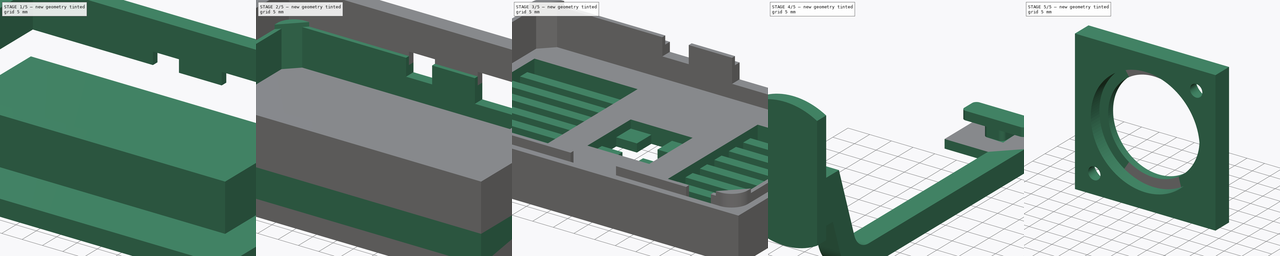
[diagram: build sequence overview — one tinted view per stage of 5, left to right]
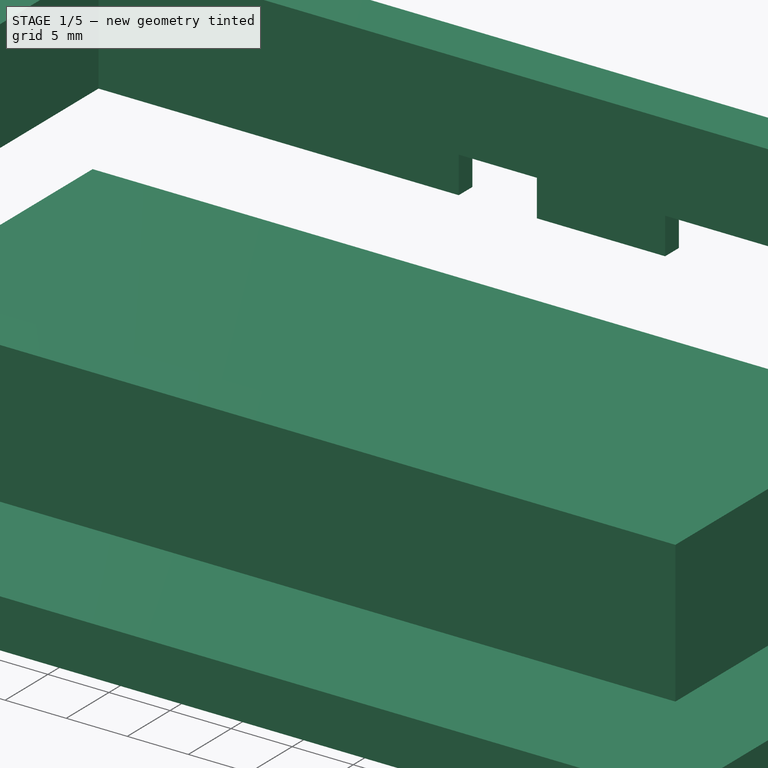
[diagram: stage 1 of 5 — iso view after this stage's code; geometry added in this stage tinted green]
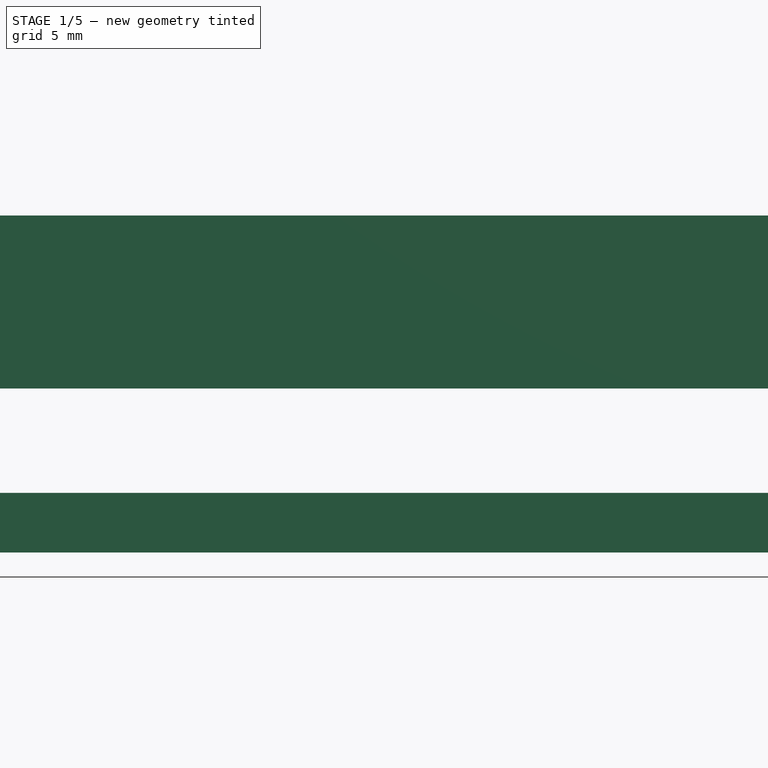
[diagram: stage 1 of 5 — front view after this stage's code; geometry added in this stage tinted green]
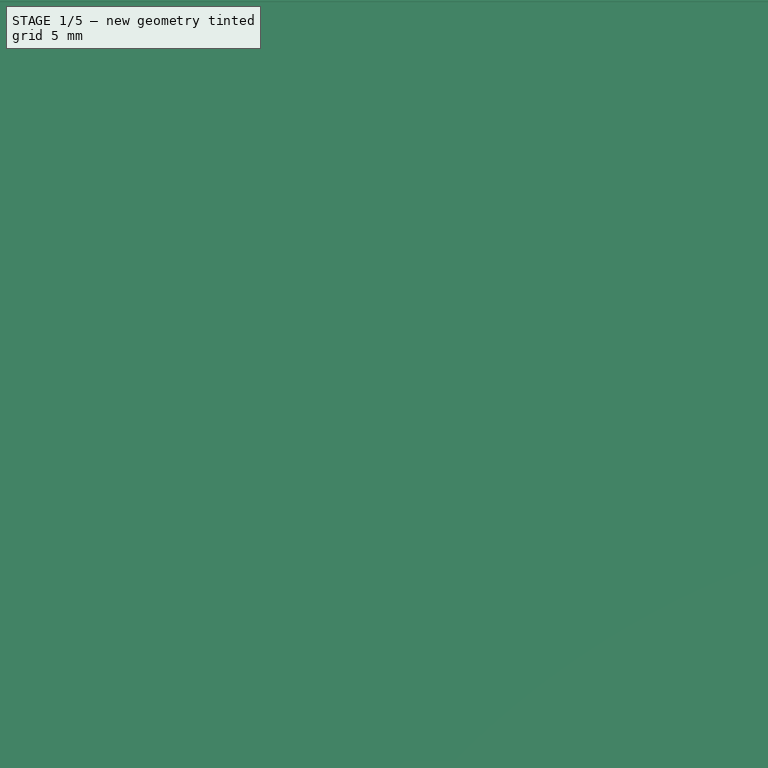
[diagram: stage 1 of 5 — top view after this stage's code; geometry added in this stage tinted green]
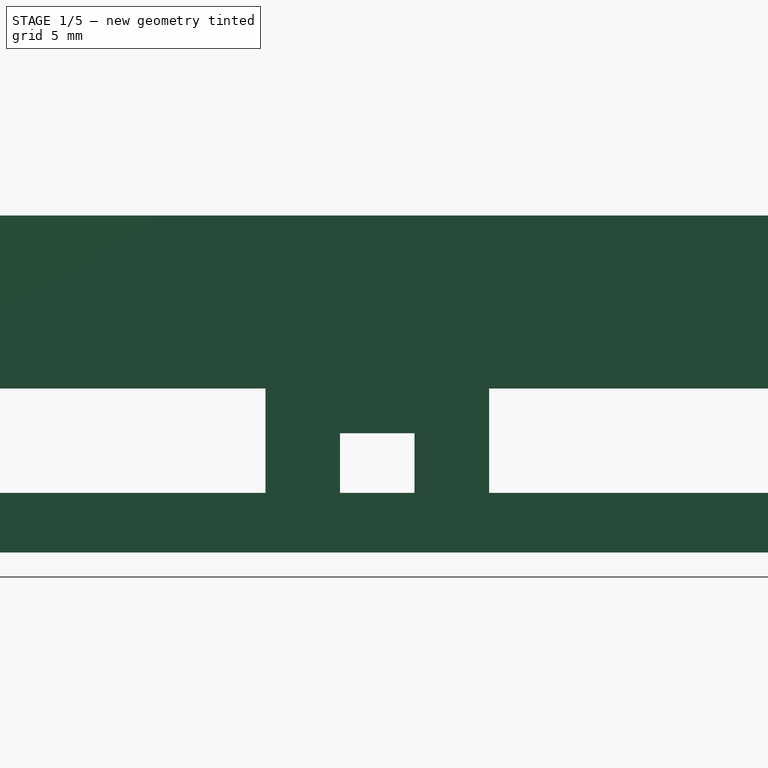
[diagram: stage 1 of 5 — right view after this stage's code; geometry added in this stage tinted green]
FCSTD DOCUMENT  (FreeCAD 0.19R24415 (Git))
Label: kedei-display-case
License: All rights reserved
LicenseURL: http://en.wikipedia.org/wiki/All_rights_reserved
objects: Sketcher::SketchObject×32, PartDesign::Pad×15, PartDesign::Pocket×11, PartDesign::ShapeBinder×6, PartDesign::Body×4, PartDesign::AdditiveLoft×2, PartDesign::Hole×2
note: 102 computed .brp shape members not serialized (recipe doc carries the construction recipe); baked Part::Feature solids carry a one-line shape summary decoded from their .brp

FEATURE [Sketcher::SketchObject] Sketch
  FullyConstrained = true
  MapMode = 5
  Support = -> [XY_Plane]
  sketch-geometry (20):
    g0: LineSegment StartX=0 StartY=0 StartZ=0 EndX=85.9 EndY=0 EndZ=0
    g1: LineSegment StartX=85.9 StartY=0 StartZ=0 EndX=85.9 EndY=55.9 EndZ=0
    g2: LineSegment StartX=85.9 StartY=55.9 StartZ=0 EndX=0 EndY=55.9 EndZ=0
    g3: LineSegment StartX=0 StartY=55.9 StartZ=0 EndX=0 EndY=0 EndZ=0
    g4: LineSegment StartX=1.2 StartY=0.8 StartZ=0 EndX=84.7 EndY=0.8 EndZ=0
    g5: LineSegment StartX=84.7 StartY=0.8 StartZ=0 EndX=84.7 EndY=55.1 EndZ=0
    g6: LineSegment StartX=84.7 StartY=55.1 StartZ=0 EndX=1.2 EndY=55.1 EndZ=0
    g7: LineSegment StartX=1.2 StartY=55.1 StartZ=0 EndX=1.2 EndY=0.8 EndZ=0
    g8: LineSegment StartX=0 StartY=0 StartZ=0 EndX=1.2 EndY=0.8 EndZ=0
    g9: LineSegment StartX=85.9 StartY=0 StartZ=0 EndX=84.7 EndY=0.8 EndZ=0
    g10: LineSegment StartX=85.9 StartY=55.9 StartZ=0 EndX=84.7 EndY=55.1 EndZ=0
    g11: LineSegment StartX=0 StartY=55.9 StartZ=0 EndX=1.2 EndY=55.1 EndZ=0
    g12: LineSegment StartX=0 StartY=55.9 StartZ=0 EndX=-1.6 EndY=57.5 EndZ=0
    g13: LineSegment StartX=0 StartY=0 StartZ=0 EndX=-1.6 EndY=-1.6 EndZ=0
    g14: LineSegment StartX=85.9 StartY=0 StartZ=0 EndX=87.5 EndY=-1.6 EndZ=0
    g15: LineSegment StartX=85.9 StartY=55.9 StartZ=0 EndX=87.5 EndY=57.5 EndZ=0
    g16: LineSegment StartX=-1.6 StartY=57.5 StartZ=0 EndX=-1.6 EndY=-1.6 EndZ=0
    g17: LineSegment StartX=-1.6 StartY=-1.6 StartZ=0 EndX=87.5 EndY=-1.6 EndZ=0
    g18: LineSegment StartX=87.5 StartY=-1.6 StartZ=0 EndX=87.5 EndY=57.5 EndZ=0
    g19: LineSegment StartX=87.5 StartY=57.5 StartZ=0 EndX=-1.6 EndY=57.5 EndZ=0
  constraints (51):
    c: Coincident(g0,g1)
    c: Coincident(g1,g2)
    c: Coincident(g2,g3)
    c: Coincident(g3,g0)
    c: Horizontal(g0)
    c: Horizontal(g2)
    c: Vertical(g1)
    c: Vertical(g3)
    c: Coincident(g0,g-1)
    c: DistanceY(g3,g3) = 55.9
    c: DistanceX(g0,g0) = 85.9
    c: Coincident(g4,g5)
    c: Coincident(g5,g6)
    c: Coincident(g6,g7)
    c: Coincident(g7,g4)
    c: Horizontal(g4)
    c: Horizontal(g6)
    c: Vertical(g5)
    c: Vertical(g7)
    c: DistanceY(g7,g7) = 54.3
    c: DistanceX(g4,g4) = 83.5
    c: Coincident(g8,g-1)
    c: Coincident(g8,g4)
    c: Coincident(g9,g0)
    c: Coincident(g9,g4)
    c: Coincident(g10,g1)
    c: Coincident(g10,g5)
    c: Coincident(g11,g2)
    c: Coincident(g11,g6)
    c: Equal(g8,g11)
    c: Equal(g11,g10)
    c: DistanceX(g12,g12) = 1.6
    c: Coincident(g12,g2)
    c: DistanceY(g12,g12) = 1.6
    c: Coincident(g13,g0)
    c: Coincident(g14,g0)
    c: Coincident(g15,g1)
    c: Equal(g12,g15)
    c: Equal(g15,g14)
    c: Equal(g14,g13)
    c: Coincident(g16,g12)
    c: Coincident(g16,g13)
    c: Vertical(g16)
    c: Coincident(g17,g16)
    c: Coincident(g17,g14)
    c: Horizontal(g17)
    c: Coincident(g18,g17)
    c: Coincident(g18,g15)
    c: Vertical(g18)
    c: Coincident(g19,g18)
    c: Coincident(g19,g16)
FEATURE [PartDesign::Pad] Pad
  Direction = (1,1,1)
  Length = 7.6
  Length2 = 100
  Profile = -> Sketch
  Type = 0
FEATURE [Sketcher::SketchObject] Sketch002
  ExternalGeometry = -> [Pad]
  FullyConstrained = true
  MapMode = 5
  Placement = pos=(0,0,7.6) rot=(0,0,1;0rad)
  Support = -> [Pad]
  sketch-geometry (10):
    g0: LineSegment StartX=-1.6 StartY=-1.6 StartZ=0 EndX=87.5 EndY=-1.6 EndZ=0
    g1: LineSegment StartX=87.5 StartY=-1.6 StartZ=0 EndX=87.5 EndY=57.5 EndZ=0
    g2: LineSegment StartX=87.5 StartY=57.5 StartZ=0 EndX=-1.6 EndY=57.5 EndZ=0
    g3: LineSegment StartX=-1.6 StartY=57.5 StartZ=0 EndX=-1.6 EndY=-1.6 EndZ=0
    g4: LineSegment StartX=0 StartY=55.9 StartZ=0 EndX=3 EndY=53.4 EndZ=0
    g5: LineSegment StartX=85.9 StartY=0 StartZ=0 EndX=77.9 EndY=2.5 EndZ=0
    g6: LineSegment StartX=3 StartY=53.4 StartZ=0 EndX=77.9 EndY=53.4 EndZ=0
    g7: LineSegment StartX=77.9 StartY=53.4 StartZ=0 EndX=77.9 EndY=2.5 EndZ=0
    g8: LineSegment StartX=77.9 StartY=2.5 StartZ=0 EndX=3 EndY=2.5 EndZ=0
    g9: LineSegment StartX=3 StartY=2.5 StartZ=0 EndX=3 EndY=53.4 EndZ=0
  constraints (24):
    c: Coincident(g0,g-4)
    c: Coincident(g0,g-5)
    c: Coincident(g1,g0)
    c: Coincident(g1,g-6)
    c: Coincident(g2,g1)
    c: Coincident(g2,g-6)
    c: Coincident(g3,g2)
    c: Coincident(g3,g0)
    c: Coincident(g4,g-8)
    c: Coincident(g5,g-10)
    c: DistanceX(g4,g4) = 3
    c: DistanceY(g4,g4) = 2.5
    c: DistanceY(g5,g5) = 2.5
    c: DistanceX(g5,g5) = 8
    c: Coincident(g6,g7)
    c: Coincident(g7,g8)
    c: Coincident(g8,g9)
    c: Coincident(g9,g6)
    c: Horizontal(g6)
    c: Horizontal(g8)
    c: Vertical(g7)
    c: Vertical(g9)
    c: Coincident(g6,g4)
    c: Coincident(g7,g5)
FEATURE [PartDesign::Pad] Pad001
  BaseFeature = -> Pad
  Direction = (1,1,1)
  Length = 1
  Length2 = 100
  Profile = -> Sketch002
  Type = 0
FEATURE [Sketcher::SketchObject] Sketch004
  ExternalGeometry = -> [Pad001]
  FullyConstrained = true
  MapMode = 5
  Placement = pos=(0,0,0) rot=(1,0,0;3.14159rad)
  Support = -> [Pad001]
  sketch-geometry (27):
    g0: LineSegment StartX=80.9 StartY=-57.5 StartZ=0 EndX=71.4 EndY=-57.5 EndZ=0
    g1: LineSegment StartX=61.9 StartY=-57.5 StartZ=0 EndX=46.4 EndY=-57.5 EndZ=0
    g2: LineSegment StartX=71.4 StartY=-57.5 StartZ=0 EndX=71.4 EndY=-55.9 EndZ=0
    g3: LineSegment StartX=61.9 StartY=-57.5 StartZ=0 EndX=61.9 EndY=-55.9 EndZ=0
    g4: LineSegment StartX=61.9 StartY=-55.9 StartZ=0 EndX=71.4 EndY=-55.9 EndZ=0
    g5: LineSegment StartX=61.9 StartY=-57.5 StartZ=0 EndX=71.4 EndY=-57.5 EndZ=0
    g6: LineSegment StartX=46.4 StartY=-57.5 StartZ=0 EndX=35.9 EndY=-57.5 EndZ=0
    g7: LineSegment StartX=46.4 StartY=-57.5 StartZ=0 EndX=46.4 EndY=-55.9 EndZ=0
    g8: LineSegment StartX=35.9 StartY=-57.5 StartZ=0 EndX=35.9 EndY=-55.9 EndZ=0
    g9: LineSegment StartX=35.9 StartY=-55.9 StartZ=0 EndX=46.4 EndY=-55.9 EndZ=0
    g10: LineSegment StartX=35.9 StartY=-57.5 StartZ=0 EndX=29.5 EndY=-57.5 EndZ=0
    g11: LineSegment StartX=29.5 StartY=-57.5 StartZ=0 EndX=29.5 EndY=-55.9 EndZ=0
    g12: LineSegment StartX=29.5 StartY=-55.9 StartZ=0 EndX=0 EndY=-55.9 EndZ=0
    g13: LineSegment StartX=-1.6 StartY=-57.5 StartZ=0 EndX=29.5 EndY=-57.5 EndZ=0
    g14: LineSegment StartX=-1.6 StartY=-57.5 StartZ=0 EndX=-1.6 EndY=1.6 EndZ=0
    g15: LineSegment StartX=0 StartY=0 StartZ=0 EndX=0 EndY=-55.9 EndZ=0
    g16: LineSegment StartX=-1.6 StartY=1.6 StartZ=0 EndX=87.5 EndY=1.6 EndZ=0
    g17: LineSegment StartX=85.9 StartY=0 StartZ=0 EndX=0 EndY=0 EndZ=0
    g18: LineSegment StartX=85.9 StartY=0 StartZ=0 EndX=85.9 EndY=-42.9 EndZ=0
    g19: LineSegment StartX=85.9 StartY=-42.9 StartZ=0 EndX=87.5 EndY=-42.9 EndZ=0
    g20: LineSegment StartX=87.5 StartY=-42.9 StartZ=0 EndX=87.5 EndY=1.6 EndZ=0
    g21: LineSegment StartX=80.9 StartY=-57.5 StartZ=0 EndX=87.5 EndY=-57.5 EndZ=0
    g22: LineSegment StartX=80.9 StartY=-57.5 StartZ=0 EndX=80.9 EndY=-55.9 EndZ=0
    g23: LineSegment StartX=80.9 StartY=-55.9 StartZ=0 EndX=85.9 EndY=-55.9 EndZ=0
    g24: LineSegment StartX=85.9 StartY=-55.9 StartZ=0 EndX=85.9 EndY=-50.9 EndZ=0
    g25: LineSegment StartX=87.5 StartY=-57.5 StartZ=0 EndX=87.5 EndY=-50.9 EndZ=0
    g26: LineSegment StartX=87.5 StartY=-50.9 StartZ=0 EndX=85.9 EndY=-50.9 EndZ=0
  constraints (70):
    c: Horizontal(g0)
    c: DistanceX(g0,g0) = 9.5
    c: Horizontal(g1)
    c: DistanceX(g1,g1) = 15.5
    c: Coincident(g2,g0)
    c: Vertical(g2)
    c: Coincident(g3,g1)
    c: Vertical(g3)
    c: Coincident(g4,g3)
    c: Coincident(g4,g2)
    c: Coincident(g5,g3)
    c: Coincident(g5,g2)
    c: Horizontal(g5)
    c: Coincident(g6,g1)
    c: Horizontal(g6)
    c: Coincident(g7,g6)
    c: Vertical(g7)
    c: Coincident(g8,g6)
    c: Vertical(g8)
    c: Coincident(g9,g8)
    c: Coincident(g9,g7)
    c: Coincident(g10,g6)
    c: Horizontal(g10)
    c: DistanceX(g10,g10) = 6.4
    c: Coincident(g11,g10)
    c: Vertical(g11)
    c: Coincident(g12,g11)
    c: Coincident(g13,g11)
    c: Coincident(g19,g18)
    c: Horizontal(g19)
    c: Coincident(g20,g19)
    c: Coincident(g15,g-6)
    c: Coincident(g-5,g13)
    c: Coincident(g12,g15)
    c: Coincident(g14,g13)
    c: Coincident(g21,g0)
    c: Coincident(g21,g-4)
    c: Horizontal(g21)
    c: Coincident(g22,g21)
    c: PointOnObject(g22,g-3)
    c: Vertical(g22)
    c: Coincident(g23,g22)
    c: Coincident(g23,g-3)
    c: Coincident(g24,g23)
    c: Vertical(g24)
    c: Coincident(g25,g21)
    c: Vertical(g25)
    c: Coincident(g26,g25)
    c: Coincident(g26,g24)
    c: Horizontal(g26)
    c: DistanceY(g24,g24) = 5
    c: DistanceX(g23,g23) = 5
    c: Coincident(g18,g-9)
    c: Coincident(g17,g18)
    c: Coincident(g16,g-10)
    c: Coincident(g20,g16)
    c: Coincident(g-10,g16)
    c: Coincident(g17,g-1)
    c: Coincident(g15,g17)
    c: Coincident(g14,g16)
    c: Horizontal(g12)
    c: PointOnObject(g2,g-3)
    c: PointOnObject(g3,g-3)
    c: DistanceX(g3,g23) = 24
    c: DistanceX(g6,g23) = 50
    c: PointOnObject(g8,g-3)
    c: PointOnObject(g7,g-3)
    c: PointOnObject(g19,g-7)
    c: PointOnObject(g18,g-8)
    c: DistanceY(g25,g19) = 8
FEATURE [PartDesign::Pad] Pad003
  BaseFeature = -> Pad001
  Direction = (1,1,1)
  Length = 3
  Length2 = 100
  Profile = -> Sketch004
  Type = 0
FEATURE [PartDesign::ShapeBinder] ShapeBinder001  label="ShapeBinderFrontBack"
  Support = -> [Pad003]
  TraceSupport = true
FEATURE [Sketcher::SketchObject] Sketch009
  AttachmentOffset = pos=(0,0,-14) rot=(0,0,1;0rad)
  ExternalGeometry = -> [ShapeBinder001]
  FullyConstrained = true
  MapMode = 5
  Placement = pos=(0,0,-14) rot=(0,0,1;0rad)
  Support = -> [XY_Plane002]
  sketch-geometry (4):
    g0: LineSegment StartX=-1.6 StartY=57.5 StartZ=0 EndX=87.5 EndY=57.5 EndZ=0
    g1: LineSegment StartX=87.5 StartY=57.5 StartZ=0 EndX=87.5 EndY=-1.6 EndZ=0
    g2: LineSegment StartX=87.5 StartY=-1.6 StartZ=0 EndX=-1.6 EndY=-1.6 EndZ=0
    g3: LineSegment StartX=-1.6 StartY=-1.6 StartZ=0 EndX=-1.6 EndY=57.5 EndZ=0
  constraints (8):
    c: Coincident(g2,g3)
    c: Coincident(g0,g1)
    c: Coincident(g1,g2)
    c: Coincident(g0,g3)
    c: Coincident(g-6,g0)
    c: Coincident(g2,g-8)
    c: Coincident(g1,g-9)
    c: Coincident(g0,g-11)
FEATURE [PartDesign::Pad] Pad007
  Direction = (1,1,1)
  Length = 4
  Length2 = 100
  Profile = -> Sketch009
  Type = 0
FEATURE [Sketcher::SketchObject] Sketch032
  ExternalGeometry = -> [Pad003]
  FullyConstrained = true
  MapMode = 5
  Placement = pos=(0,0,-3) rot=(1,0,0;3.14159rad)
  Support = -> [Pad003]
  sketch-geometry (8):
    g0: LineSegment StartX=-1.6 StartY=-20 StartZ=0 EndX=0 EndY=-20 EndZ=0
    g1: LineSegment StartX=0 StartY=-20 StartZ=0 EndX=0 EndY=-35 EndZ=0
    g2: LineSegment StartX=0 StartY=-35 StartZ=0 EndX=-1.6 EndY=-35 EndZ=0
    g3: LineSegment StartX=-1.6 StartY=-35 StartZ=0 EndX=-1.6 EndY=-20 EndZ=0
    g4: LineSegment StartX=85.9 StartY=-20 StartZ=0 EndX=87.5 EndY=-20 EndZ=0
    g5: LineSegment StartX=87.5 StartY=-20 StartZ=0 EndX=87.5 EndY=-35 EndZ=0
    g6: LineSegment StartX=87.5 StartY=-35 StartZ=0 EndX=85.9 EndY=-35 EndZ=0
    g7: LineSegment StartX=85.9 StartY=-35 StartZ=0 EndX=85.9 EndY=-20 EndZ=0
  constraints (24):
    c: Coincident(g0,g1)
    c: Coincident(g1,g2)
    c: Coincident(g2,g3)
    c: Coincident(g3,g0)
    c: Horizontal(g0)
    c: Horizontal(g2)
    c: DistanceY(g3,g3) = 15
    c: Coincident(g4,g5)
    c: Coincident(g5,g6)
    c: Coincident(g6,g7)
    c: Coincident(g7,g4)
    c: Horizontal(g4)
    c: Horizontal(g6)
    c: Horizontal(g0,g4)
    c: Equal(g7,g1)
    c: PointOnObject(g0,g-6)
    c: PointOnObject(g0,g-7)
    c: PointOnObject(g1,g-7)
    c: PointOnObject(g2,g-6)
    c: DistanceY(g0,g-1) = 20
    c: PointOnObject(g5,g-4)
    c: PointOnObject(g6,g-5)
    c: PointOnObject(g4,g-4)
    c: PointOnObject(g4,g-5)
FEATURE [PartDesign::Pad] Pad019
  BaseFeature = -> Pad003
  Direction = (1,1,1)
  Length = 11
  Length2 = 100
  Profile = -> Sketch032
  Type = 0
FEATURE [Sketcher::SketchObject] Sketch033
  ExternalGeometry = -> [Pad019]
  FullyConstrained = true
  MapMode = 5
  Placement = pos=(87.5,0,0) rot=(0.57735,0.57735,0.57735;2.0944rad)
  Support = -> [Pad019]
  sketch-geometry (8):
    g0: LineSegment StartX=25 StartY=-6 StartZ=0 EndX=30 EndY=-6 EndZ=0
    g1: LineSegment StartX=30 StartY=-6 StartZ=0 EndX=30 EndY=-11 EndZ=0
    g2: LineSegment StartX=30 StartY=-11 StartZ=0 EndX=25 EndY=-11 EndZ=0
    g3: LineSegment StartX=25 StartY=-11 StartZ=0 EndX=25 EndY=-6 EndZ=0
    g4: LineSegment StartX=20 StartY=-3 StartZ=0 EndX=25 EndY=-6 EndZ=0
    g5: LineSegment StartX=30 StartY=-6 StartZ=0 EndX=35 EndY=-3 EndZ=0
    g6: LineSegment StartX=30 StartY=-11 StartZ=0 EndX=35 EndY=-14 EndZ=0
    g7: LineSegment StartX=25 StartY=-11 StartZ=0 EndX=20 EndY=-14 EndZ=0
  constraints (20):
    c: Coincident(g0,g1)
    c: Coincident(g1,g2)
    c: Coincident(g2,g3)
    c: Coincident(g3,g0)
    c: Horizontal(g0)
    c: Horizontal(g2)
    c: Vertical(g1)
    c: Vertical(g3)
    c: Coincident(g4,g0)
    c: Coincident(g5,g0)
    c: Coincident(g6,g1)
    c: Coincident(g7,g2)
    c: Equal(g4,g7)
    c: Equal(g7,g5)
    c: DistanceY(g3,g3) = 5
    c: DistanceX(g0,g0) = 5
    c: Coincident(g-6,g4)
    c: Coincident(g7,g-4)
    c: Coincident(g6,g-5)
    c: Coincident(g5,g-6)
FEATURE [PartDesign::Pocket] Pocket008
  BaseFeature = -> Pad019
  Length = 5
  Length2 = 100
  Profile = -> Sketch033
  Type = 1
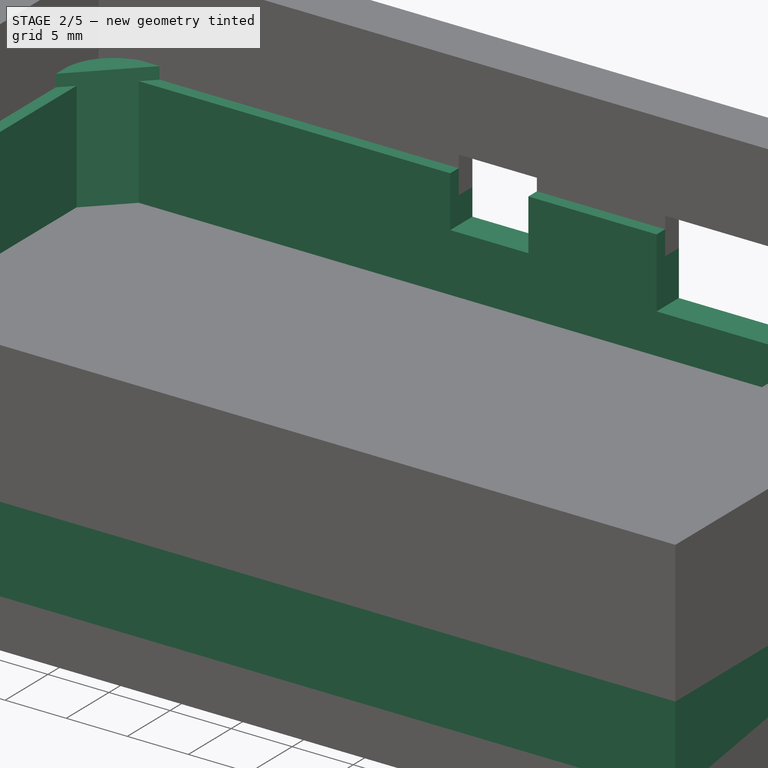
[diagram: stage 2 of 5 — iso view after this stage's code; geometry added in this stage tinted green]
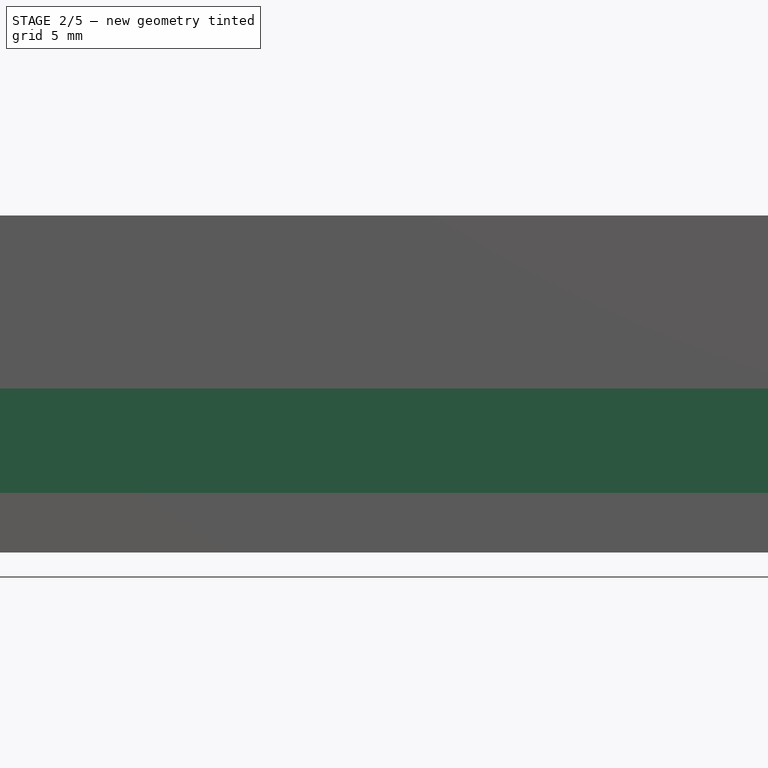
[diagram: stage 2 of 5 — front view after this stage's code; geometry added in this stage tinted green]
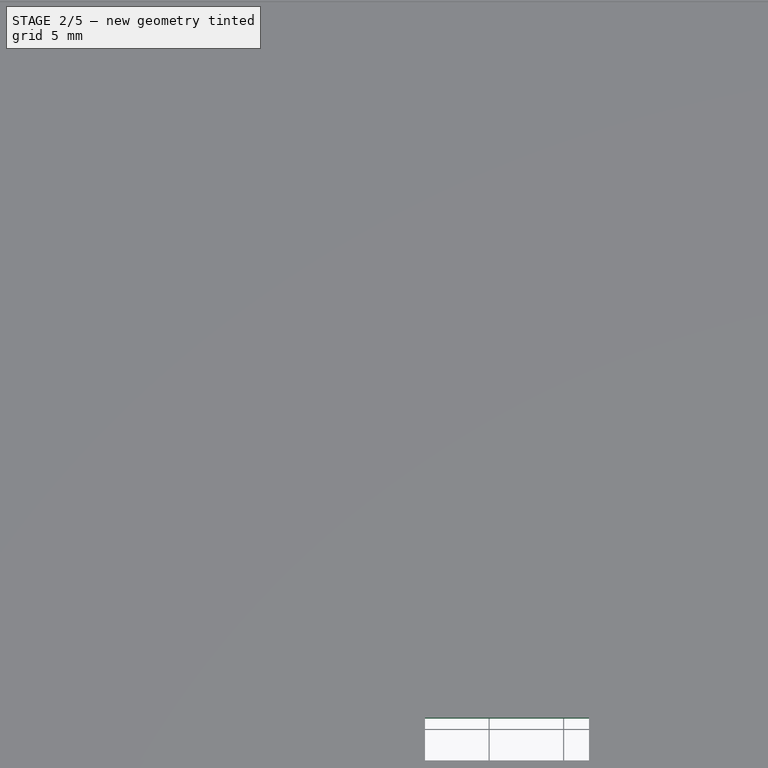
[diagram: stage 2 of 5 — top view after this stage's code; geometry added in this stage tinted green]
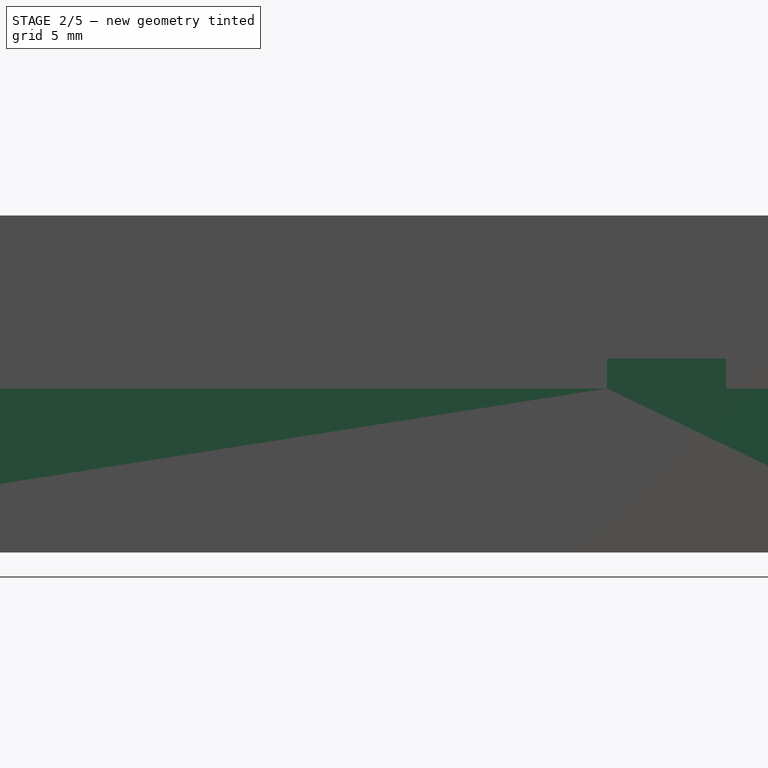
[diagram: stage 2 of 5 — right view after this stage's code; geometry added in this stage tinted green]
FEATURE [Sketcher::SketchObject] Sketch010
  ExternalGeometry = -> [ShapeBinder001]
  FullyConstrained = true
  MapMode = 5
  Placement = pos=(0,0,-10) rot=(0,0,1;0rad)
  Support = -> [Pad007]
  sketch-geometry (20):
    g0: LineSegment StartX=87.5 StartY=-1.6 StartZ=0 EndX=87.5 EndY=57.5 EndZ=0
    g1: LineSegment StartX=87.5 StartY=57.5 StartZ=0 EndX=-1.6 EndY=57.5 EndZ=0
    g2: LineSegment StartX=-1.6 StartY=57.5 StartZ=0 EndX=-1.6 EndY=-1.6 EndZ=0
    g3: LineSegment StartX=-1.6 StartY=-1.6 StartZ=0 EndX=87.5 EndY=-1.6 EndZ=0
    g4: LineSegment StartX=4 StartY=1 StartZ=0 EndX=81.9 EndY=1 EndZ=0
    g5: LineSegment StartX=1 StartY=4 StartZ=0 EndX=1 EndY=51.9 EndZ=0
    g6: LineSegment StartX=1 StartY=4 StartZ=0 EndX=4 EndY=1 EndZ=0
    g7: LineSegment StartX=4 StartY=54.9 StartZ=0 EndX=81.9 EndY=54.9 EndZ=0
    g8: LineSegment StartX=1 StartY=51.9 StartZ=0 EndX=4 EndY=54.9 EndZ=0
    g9: LineSegment StartX=84.9 StartY=51.9 StartZ=0 EndX=84.9 EndY=4 EndZ=0
    g10: LineSegment StartX=81.9 StartY=1 StartZ=0 EndX=84.9 EndY=4 EndZ=0
    g11: LineSegment StartX=81.9 StartY=54.9 StartZ=0 EndX=84.9 EndY=51.9 EndZ=0
    g12: LineSegment StartX=0 StartY=0 StartZ=0 EndX=4 EndY=1 EndZ=0
    g13: LineSegment StartX=1 StartY=4 StartZ=0 EndX=0 EndY=0 EndZ=0
    g14: LineSegment StartX=85.9 StartY=0 StartZ=0 EndX=81.9 EndY=1 EndZ=0
    g15: LineSegment StartX=84.9 StartY=4 StartZ=0 EndX=85.9 EndY=0 EndZ=0
    g16: LineSegment StartX=84.9 StartY=51.9 StartZ=0 EndX=85.9 EndY=55.9 EndZ=0
    g17: LineSegment StartX=85.9 StartY=55.9 StartZ=0 EndX=81.9 EndY=54.9 EndZ=0
    g18: LineSegment StartX=0 StartY=55.9 StartZ=0 EndX=1 EndY=51.9 EndZ=0
    g19: LineSegment StartX=4 StartY=54.9 StartZ=0 EndX=0 EndY=55.9 EndZ=0
  constraints (48):
    c: Coincident(g1,g0)
    c: Horizontal(g4)
    c: Vertical(g5)
    c: Coincident(g6,g5)
    c: Coincident(g6,g4)
    c: Horizontal(g7)
    c: Coincident(g8,g5)
    c: Coincident(g8,g7)
    c: Equal(g8,g6)
    c: Vertical(g9)
    c: Coincident(g10,g4)
    c: Coincident(g10,g9)
    c: Equal(g6,g10)
    c: Coincident(g11,g7)
    c: Coincident(g11,g9)
    c: Coincident(g-3,g0)
    c: Coincident(g-7,g1)
    c: Coincident(g-9,g0)
    c: Coincident(g3,g0)
    c: Coincident(g-8,g3)
    c: Coincident(g3,g2)
    c: Coincident(g1,g2)
    c: Coincident(g12,g-1)
    c: Coincident(g12,g4)
    c: Coincident(g13,g5)
    c: Coincident(g13,g-1)
    c: DistanceY(g-1,g4) = 1
    c: DistanceX(g-1,g4) = 4
    c: Equal(g12,g13)
    c: Coincident(g14,g-10)
    c: Coincident(g14,g4)
    c: Coincident(g15,g9)
    c: Coincident(g15,g14)
    c: Equal(g14,g12)
    c: Equal(g14,g15)
    c: Coincident(g16,g9)
    c: Coincident(g16,g-6)
    c: Coincident(g17,g16)
    c: Coincident(g17,g7)
    c: Equal(g16,g17)
    c: Equal(g16,g15)
    c: Coincident(g18,g-18)
    c: Coincident(g18,g5)
    c: Coincident(g19,g7)
    c: Coincident(g19,g18)
    c: Equal(g19,g18)
    c: Equal(g18,g13)
    c: DistanceX(g-1,g5) = 1
FEATURE [PartDesign::Pad] Pad008
  BaseFeature = -> Pad007
  Direction = (1,1,1)
  Length = 9
  Length2 = 100
  Profile = -> Sketch010
  Type = 0
FEATURE [Sketcher::SketchObject] Sketch011
  ExternalGeometry = -> [ShapeBinder001]
  FullyConstrained = true
  MapMode = 5
  Placement = pos=(0,0,-1) rot=(0,0,1;0rad)
  Support = -> [Pad008]
  sketch-geometry (12):
    g0: LineSegment StartX=85.9 StartY=55.9 StartZ=0 EndX=85.9 EndY=50.9 EndZ=0
    g1: LineSegment StartX=85.9 StartY=55.9 StartZ=0 EndX=80.9 EndY=55.9 EndZ=0
    g2: LineSegment StartX=80.9 StartY=55.9 StartZ=0 EndX=85.9 EndY=50.9 EndZ=0
    g3: LineSegment StartX=0 StartY=55.9 StartZ=0 EndX=5 EndY=55.9 EndZ=0
    g4: LineSegment StartX=0 StartY=55.9 StartZ=0 EndX=0 EndY=50.9 EndZ=0
    g5: LineSegment StartX=0 StartY=50.9 StartZ=0 EndX=5 EndY=55.9 EndZ=0
    g6: LineSegment StartX=5 StartY=0 StartZ=0 EndX=0 EndY=0 EndZ=0
    g7: LineSegment StartX=0 StartY=0 StartZ=0 EndX=0 EndY=5 EndZ=0
    g8: LineSegment StartX=0 StartY=5 StartZ=0 EndX=5 EndY=0 EndZ=0
    g9: LineSegment StartX=85.9 StartY=0 StartZ=0 EndX=80.9 EndY=0 EndZ=0
    g10: LineSegment StartX=85.9 StartY=0 StartZ=0 EndX=85.9 EndY=5 EndZ=0
    g11: LineSegment StartX=85.9 StartY=5 StartZ=0 EndX=80.9 EndY=0 EndZ=0
  constraints (32):
    c: Coincident(g0,g-4)
    c: Vertical(g0)
    c: DistanceY(g0,g0) = 5
    c: Coincident(g1,g0)
    c: Horizontal(g1)
    c: Coincident(g2,g1)
    c: Coincident(g2,g0)
    c: Equal(g0,g1)
    c: Coincident(g3,g-6)
    c: Horizontal(g3)
    c: Coincident(g4,g3)
    c: Vertical(g4)
    c: Coincident(g5,g4)
    c: Coincident(g5,g3)
    c: Equal(g3,g4)
    c: Equal(g3,g1)
    c: Coincident(g6,g-1)
    c: Horizontal(g6)
    c: Coincident(g6,g7)
    c: Vertical(g7)
    c: Coincident(g8,g7)
    c: Coincident(g8,g6)
    c: Equal(g7,g6)
    c: Equal(g7,g4)
    c: Coincident(g9,g-8)
    c: Horizontal(g9)
    c: Coincident(g10,g9)
    c: Vertical(g10)
    c: Coincident(g11,g10)
    c: Coincident(g11,g9)
    c: Equal(g10,g9)
    c: Equal(g10,g0)
FEATURE [PartDesign::Pad] Pad009
  BaseFeature = -> Pad008
  Direction = (1,1,1)
  Length = 1
  Length2 = 100
  Profile = -> Sketch011
  Type = 0
FEATURE [Sketcher::SketchObject] Sketch014
  ExternalGeometry = -> [ShapeBinder001]
  FullyConstrained = true
  MapMode = 5
  Placement = pos=(0,0,3.6e-15) rot=(0,0,1;0rad)
  Support = -> [Pad009]
  sketch-geometry (16):
    g0: LineSegment StartX=-1.6 StartY=57.5 StartZ=0 EndX=87.5 EndY=57.5 EndZ=0
    g1: LineSegment StartX=87.5 StartY=57.5 StartZ=0 EndX=87.5 EndY=-1.6 EndZ=0
    g2: LineSegment StartX=87.5 StartY=-1.6 StartZ=0 EndX=-1.6 EndY=-1.6 EndZ=0
    g3: LineSegment StartX=-1.6 StartY=-1.6 StartZ=0 EndX=-1.6 EndY=57.5 EndZ=0
    g4: LineSegment StartX=2.4e-14 StartY=51.9 StartZ=0 EndX=-2.4e-14 EndY=4 EndZ=0
    g5: LineSegment StartX=4 StartY=-1.2e-15 StartZ=0 EndX=81.9 EndY=7.1e-15 EndZ=0
    g6: LineSegment StartX=85.9 StartY=4 StartZ=0 EndX=85.9 EndY=51.9 EndZ=0
    g7: LineSegment StartX=81.9 StartY=55.9 StartZ=0 EndX=4 EndY=55.9 EndZ=0
    g8: ArcOfCircle CenterX=4 CenterY=51.9 CenterZ=0 NormalX=0 NormalY=0 NormalZ=1 AngleXU=0 Radius=4 StartAngle=1.5708 EndAngle=3.14159
    g9: GeomPoint X=0 Y=55.9 Z=0
    g10: ArcOfCircle CenterX=81.9 CenterY=51.9 CenterZ=0 NormalX=0 NormalY=0 NormalZ=1 AngleXU=0 Radius=4 StartAngle=4.41e-14 EndAngle=1.5708
    g11: GeomPoint X=85.9 Y=55.9 Z=0
    g12: ArcOfCircle CenterX=81.9 CenterY=4 CenterZ=0 NormalX=0 NormalY=0 NormalZ=1 AngleXU=0 Radius=4 StartAngle=4.71239 EndAngle=6.28319
    g13: GeomPoint X=85.9 Y=0 Z=0
    g14: ArcOfCircle CenterX=4 CenterY=4 CenterZ=0 NormalX=0 NormalY=0 NormalZ=1 AngleXU=0 Radius=4 StartAngle=3.14159 EndAngle=4.71239
    g15: GeomPoint X=0 Y=0 Z=0
  constraints (32):
    c: Coincident(g-4,g0)
    c: Coincident(g0,g-9)
    c: Coincident(g0,g1)
    c: Coincident(g1,g-14)
    c: Coincident(g1,g2)
    c: Coincident(g2,g-14)
    c: Coincident(g2,g3)
    c: Coincident(g3,g0)
    c: Coincident(g-6,g9)
    c: Coincident(g15,g-1)
    c: Coincident(g13,g-12)
    c: Coincident(g11,g-10)
    c: PointOnObject(g9,g4)
    c: PointOnObject(g9,g7)
    c: Tangent(g4,g8) = -1.5708
    c: Tangent(g7,g8) = -1.5708
    c: DistanceX(g4,g8) = 4
    c: PointOnObject(g11,g7)
    c: PointOnObject(g11,g6)
    c: Tangent(g7,g10) = -1.5708
    c: Tangent(g6,g10) = -1.5708
    c: PointOnObject(g13,g6)
    c: PointOnObject(g13,g5)
    c: Tangent(g6,g12) = -1.5708
    c: Tangent(g5,g12) = -1.5708
    c: PointOnObject(g15,g5)
    c: PointOnObject(g15,g4)
    c: Tangent(g5,g14) = -1.5708
    c: Tangent(g4,g14) = -1.5708
    c: Vertical(g14,g8)
    c: Horizontal(g14,g12)
    c: Vertical(g12,g10)
FEATURE [PartDesign::Pocket] Pocket  label="PocketRemoveFrontEdge"
  BaseFeature = -> Pad009
  Length = 3
  Length2 = 100
  Profile = -> Sketch014
  Type = 0
FEATURE [PartDesign::ShapeBinder] ShapeBinder  label="ShapeBinderGaps1"
  Support = -> [Pad003]
  TraceSupport = false
FEATURE [PartDesign::ShapeBinder] ShapeBinder002  label="ShapeBinderGaps2"
  Support = -> [Pad003]
  TraceSupport = false
FEATURE [Sketcher::SketchObject] Sketch015
  ExternalGeometry = -> [ShapeBinder002]
  FullyConstrained = true
  MapMode = 5
  Placement = pos=(0,57.5,0) rot=(0,0.707107,0.707107;3.14159rad)
  Support = -> [Pocket]
  sketch-geometry (12):
    g0: LineSegment StartX=-80.9 StartY=-4e-16 StartZ=0 EndX=-71.4 EndY=-3e-16 EndZ=0
    g1: LineSegment StartX=-71.4 StartY=-3e-16 StartZ=0 EndX=-71.4 EndY=-4 EndZ=0
    g2: LineSegment StartX=-71.4 StartY=-4 StartZ=0 EndX=-80.9 EndY=-4 EndZ=0
    g3: LineSegment StartX=-80.9 StartY=-4 StartZ=0 EndX=-80.9 EndY=-4e-16 EndZ=0
    g4: LineSegment StartX=-61.9 StartY=0 StartZ=0 EndX=-46.4 EndY=-3e-16 EndZ=0
    g5: LineSegment StartX=-46.4 StartY=-3e-16 StartZ=0 EndX=-46.4 EndY=-6.7 EndZ=0
    g6: LineSegment StartX=-46.4 StartY=-6.7 StartZ=0 EndX=-61.9 EndY=-6.7 EndZ=0
    g7: LineSegment StartX=-61.9 StartY=-6.7 StartZ=0 EndX=-61.9 EndY=0 EndZ=0
    g8: LineSegment StartX=-35.9 StartY=0 StartZ=0 EndX=-29.5 EndY=-4e-16 EndZ=0
    g9: LineSegment StartX=-29.5 StartY=-4e-16 StartZ=0 EndX=-29.5 EndY=-5.2 EndZ=0
    g10: LineSegment StartX=-29.5 StartY=-5.2 StartZ=0 EndX=-35.9 EndY=-5.2 EndZ=0
    g11: LineSegment StartX=-35.9 StartY=-5.2 StartZ=0 EndX=-35.9 EndY=0 EndZ=0
  constraints (30):
    c: Coincident(g0,g1)
    c: Coincident(g1,g2)
    c: Coincident(g2,g3)
    c: Coincident(g3,g0)
    c: Horizontal(g2)
    c: Vertical(g1)
    c: Vertical(g3)
    c: DistanceY(g3,g3) = 4
    c: Coincident(g4,g5)
    c: Coincident(g5,g6)
    c: Coincident(g6,g7)
    c: Coincident(g7,g4)
    c: Horizontal(g6)
    c: Vertical(g5)
    c: Vertical(g7)
    c: DistanceY(g5,g5) = 6.7
    c: Coincident(g8,g9)
    c: Coincident(g9,g10)
    c: Coincident(g10,g11)
    c: Coincident(g11,g8)
    c: Horizontal(g10)
    c: Vertical(g9)
    c: Vertical(g11)
    c: DistanceY(g9,g9) = 5.2
    c: Coincident(g-3,g0)
    c: Coincident(g0,g-3)
    c: Coincident(g4,g-4)
    c: Coincident(g4,g-4)
    c: Coincident(g-5,g8)
    c: Coincident(g-5,g8)
FEATURE [PartDesign::Pocket] Pocket001  label="PocketTopConnections"
  BaseFeature = -> Pocket
  Length = 5
  Length2 = 100
  Profile = -> Sketch015
  Type = 0
FEATURE [Sketcher::SketchObject] Sketch016
  ExternalGeometry = -> [ShapeBinder]
  FullyConstrained = true
  MapMode = 5
  Placement = pos=(87.5,0,0) rot=(0.57735,0.57735,0.57735;2.0944rad)
  Support = -> [Pocket001]
  sketch-geometry (4):
    g0: LineSegment StartX=42.9 StartY=0 StartZ=0 EndX=50.9 EndY=0 EndZ=0
    g1: LineSegment StartX=50.9 StartY=0 StartZ=0 EndX=50.9 EndY=-3 EndZ=0
    g2: LineSegment StartX=50.9 StartY=-3 StartZ=0 EndX=42.9 EndY=-3 EndZ=0
    g3: LineSegment StartX=42.9 StartY=-3 StartZ=0 EndX=42.9 EndY=0 EndZ=0
  constraints (10):
    c: Coincident(g0,g1)
    c: Coincident(g1,g2)
    c: Coincident(g2,g3)
    c: Coincident(g3,g0)
    c: Horizontal(g2)
    c: Vertical(g1)
    c: Vertical(g3)
    c: Coincident(g0,g-3)
    c: Coincident(g0,g-4)
    c: DistanceY(g1,g1) = 3
FEATURE [PartDesign::Pocket] Pocket002  label="PocketMicroUsb"
  BaseFeature = -> Pocket001
  Length = 5
  Length2 = 100
  Profile = -> Sketch016
  Type = 0
FEATURE [Sketcher::SketchObject] Sketch017
  ExternalGeometry = -> [ShapeBinder001]
  FullyConstrained = true
  MapMode = 5
  Placement = pos=(0,0,-14) rot=(1,0,0;3.14159rad)
  Support = -> [Pocket002]
  sketch-geometry (10):
    g0: LineSegment StartX=85.9 StartY=0 StartZ=0 EndX=79.7 EndY=0 EndZ=0
    g1: LineSegment StartX=79.7 StartY=0 StartZ=0 EndX=73.7 EndY=0 EndZ=0
    g2: LineSegment StartX=73.7 StartY=0 StartZ=0 EndX=73.7 EndY=-5.7 EndZ=0
    g3: LineSegment StartX=73.7 StartY=-5.7 StartZ=0 EndX=79.7 EndY=-5.7 EndZ=0
    g4: LineSegment StartX=79.7 StartY=-5.7 StartZ=0 EndX=79.7 EndY=0 EndZ=0
    g5: LineSegment StartX=73.7 StartY=0 StartZ=0 EndX=56.7 EndY=0 EndZ=0
    g6: LineSegment StartX=56.7 StartY=0 StartZ=0 EndX=45.7 EndY=0 EndZ=0
    g7: LineSegment StartX=45.7 StartY=0 StartZ=0 EndX=45.7 EndY=-5.7 EndZ=0
    g8: LineSegment StartX=45.7 StartY=-5.7 StartZ=0 EndX=56.7 EndY=-5.7 EndZ=0
    g9: LineSegment StartX=56.7 StartY=-5.7 StartZ=0 EndX=56.7 EndY=0 EndZ=0
  constraints (28):
    c: Horizontal(g0)
    c: DistanceX(g0,g0) = 6.2
    c: Coincident(g1,g2)
    c: Coincident(g2,g3)
    c: Coincident(g3,g4)
    c: Coincident(g4,g1)
    c: Horizontal(g1)
    c: Horizontal(g3)
    c: Vertical(g2)
    c: Vertical(g4)
    c: Coincident(g1,g0)
    c: DistanceY(g4,g4) = 5.7
    c: DistanceX(g1,g1) = 6
    c: Coincident(g5,g1)
    c: Horizontal(g5)
    c: DistanceX(g5,g5) = 17
    c: Coincident(g6,g7)
    c: Coincident(g7,g8)
    c: Coincident(g8,g9)
    c: Coincident(g9,g6)
    c: Horizontal(g6)
    c: Horizontal(g8)
    c: Vertical(g7)
    c: Vertical(g9)
    c: Coincident(g6,g5)
    c: DistanceX(g6,g6) = 11
    c: Equal(g9,g2)
    c: Coincident(g0,g-3)
FEATURE [PartDesign::Pocket] Pocket003  label="PocketBottomHoles"
  BaseFeature = -> Pocket002
  Length = 5
  Length2 = 100
  Profile = -> Sketch017
  Type = 1
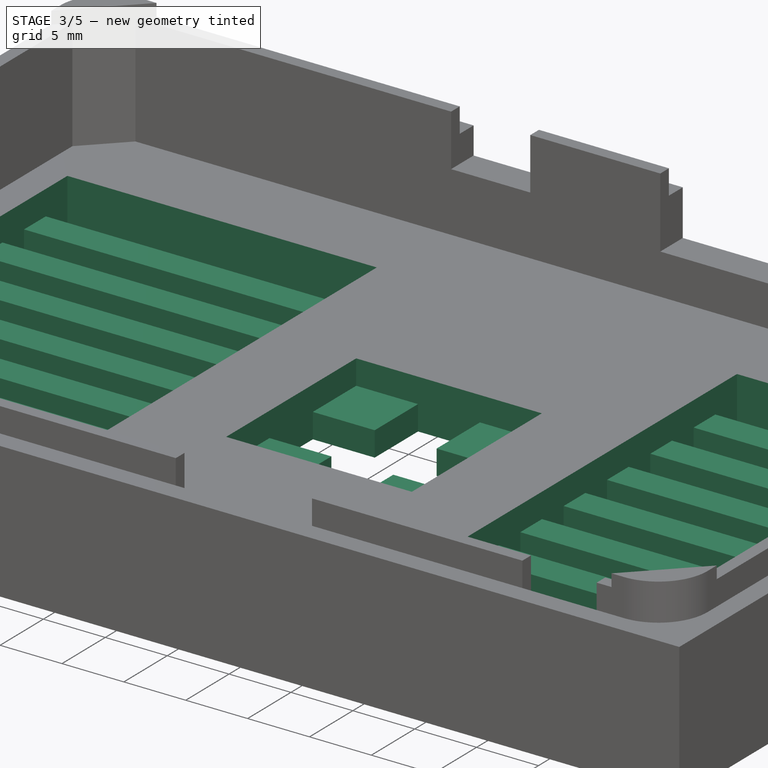
[diagram: stage 3 of 5 — iso view after this stage's code; geometry added in this stage tinted green]
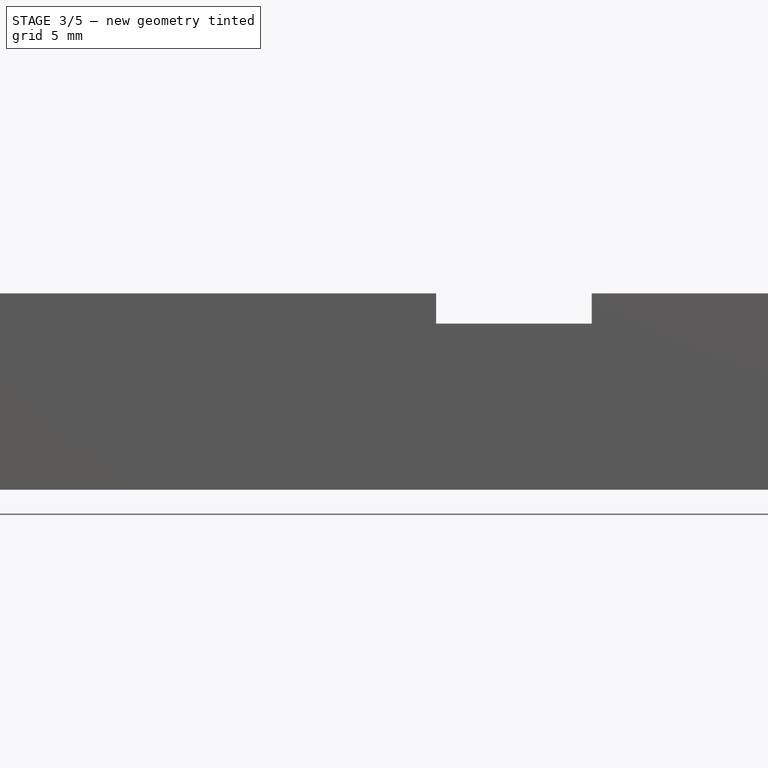
[diagram: stage 3 of 5 — front view after this stage's code; geometry added in this stage tinted green]
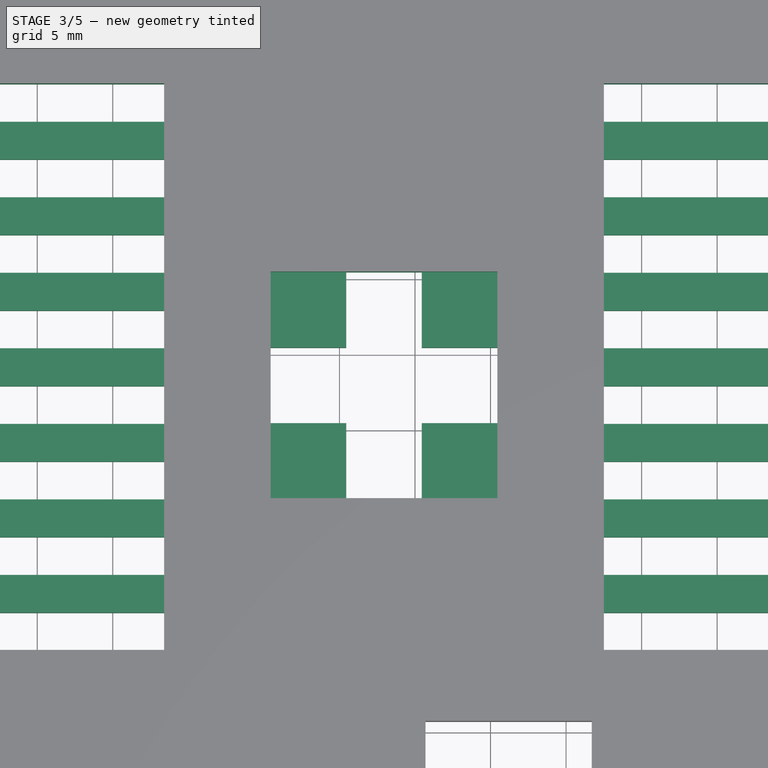
[diagram: stage 3 of 5 — top view after this stage's code; geometry added in this stage tinted green]
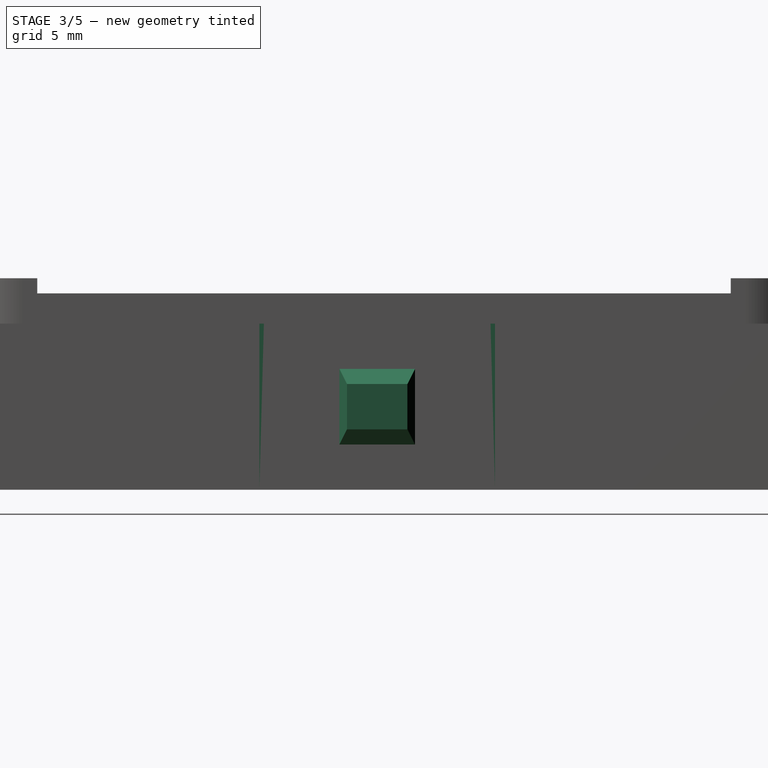
[diagram: stage 3 of 5 — right view after this stage's code; geometry added in this stage tinted green]
FEATURE [Sketcher::SketchObject] Sketch018
  ExternalGeometry = -> [Pocket003]
  FullyConstrained = true
  MapMode = 5
  Placement = pos=(0,0,-14) rot=(1,0,0;3.14159rad)
  Support = -> [Pocket003]
  sketch-geometry (99):
    g0: LineSegment StartX=-1.6 StartY=-57.5 StartZ=0 EndX=40.45 EndY=-30.45 EndZ=0
    g1: LineSegment StartX=87.5 StartY=-57.5 StartZ=0 EndX=45.45 EndY=-30.45 EndZ=0
    g2: LineSegment StartX=-1.6 StartY=1.6 StartZ=0 EndX=3.4 EndY=-10.4 EndZ=0
    g3: LineSegment StartX=28.4 StartY=-12.9 StartZ=0 EndX=3.4 EndY=-12.9 EndZ=0
    g4: LineSegment StartX=3.4 StartY=-12.9 StartZ=0 EndX=3.4 EndY=-10.4 EndZ=0
    g5: LineSegment StartX=3.4 StartY=-10.4 StartZ=0 EndX=28.4 EndY=-10.4 EndZ=0
    g6: LineSegment StartX=28.4 StartY=-10.4 StartZ=0 EndX=28.4 EndY=-12.9 EndZ=0
    g7: LineSegment StartX=3.4 StartY=-12.9 StartZ=0 EndX=3.4 EndY=-15.4 EndZ=0
    g8: LineSegment StartX=28.4 StartY=-17.9 StartZ=0 EndX=3.4 EndY=-17.9 EndZ=0
    g9: LineSegment StartX=3.4 StartY=-15.4 StartZ=0 EndX=28.4 EndY=-15.4 EndZ=0
    g10: LineSegment StartX=28.4 StartY=-15.4 StartZ=0 EndX=28.4 EndY=-17.9 EndZ=0
    g11: LineSegment StartX=3.4 StartY=-17.9 StartZ=0 EndX=3.4 EndY=-15.4 EndZ=0
    g12: LineSegment StartX=3.4 StartY=-17.9 StartZ=0 EndX=3.4 EndY=-20.4 EndZ=0
    g13: LineSegment StartX=28.4 StartY=-22.9 StartZ=0 EndX=3.4 EndY=-22.9 EndZ=0
    g14: LineSegment StartX=3.4 StartY=-20.4 StartZ=0 EndX=28.4 EndY=-20.4 EndZ=0
    g15: LineSegment StartX=28.4 StartY=-20.4 StartZ=0 EndX=28.4 EndY=-22.9 EndZ=0
    g16: LineSegment StartX=3.4 StartY=-22.9 StartZ=0 EndX=3.4 EndY=-20.4 EndZ=0
    g17: LineSegment StartX=3.4 StartY=-22.9 StartZ=0 EndX=3.4 EndY=-25.4 EndZ=0
    g18: LineSegment StartX=28.4 StartY=-27.9 StartZ=0 EndX=3.4 EndY=-27.9 EndZ=0
    g19: LineSegment StartX=3.4 StartY=-25.4 StartZ=0 EndX=28.4 EndY=-25.4 EndZ=0
    g20: LineSegment StartX=28.4 StartY=-25.4 StartZ=0 EndX=28.4 EndY=-27.9 EndZ=0
    g21: LineSegment StartX=3.4 StartY=-27.9 StartZ=0 EndX=3.4 EndY=-25.4 EndZ=0
    g22: LineSegment StartX=3.4 StartY=-27.9 StartZ=0 EndX=3.4 EndY=-30.4 EndZ=0
    g23: LineSegment StartX=28.4 StartY=-32.9 StartZ=0 EndX=3.4 EndY=-32.9 EndZ=0
    g24: LineSegment StartX=3.4 StartY=-32.9 StartZ=0 EndX=3.4 EndY=-30.4 EndZ=0
    g25: LineSegment StartX=3.4 StartY=-30.4 StartZ=0 EndX=28.4 EndY=-30.4 EndZ=0
    g26: LineSegment StartX=28.4 StartY=-30.4 StartZ=0 EndX=28.4 EndY=-32.9 EndZ=0
    g27: LineSegment StartX=3.4 StartY=-32.9 StartZ=0 EndX=3.4 EndY=-35.4 EndZ=0
    g28: LineSegment StartX=28.4 StartY=-37.9 StartZ=0 EndX=3.4 EndY=-37.9 EndZ=0
    g29: LineSegment StartX=3.4 StartY=-35.4 StartZ=0 EndX=28.4 EndY=-35.4 EndZ=0
    g30: LineSegment StartX=28.4 StartY=-35.4 StartZ=0 EndX=28.4 EndY=-37.9 EndZ=0
    g31: LineSegment StartX=3.4 StartY=-37.9 StartZ=0 EndX=3.4 EndY=-35.4 EndZ=0
    g32: LineSegment StartX=3.4 StartY=-37.9 StartZ=0 EndX=3.4 EndY=-40.4 EndZ=0
    g33: LineSegment StartX=28.4 StartY=-42.9 StartZ=0 EndX=3.4 EndY=-42.9 EndZ=0
    g34: LineSegment StartX=3.4 StartY=-40.4 StartZ=0 EndX=28.4 EndY=-40.4 EndZ=0
    g35: LineSegment StartX=28.4 StartY=-40.4 StartZ=0 EndX=28.4 EndY=-42.9 EndZ=0
    g36: LineSegment StartX=3.4 StartY=-42.9 StartZ=0 EndX=3.4 EndY=-40.4 EndZ=0
    g37: LineSegment StartX=3.4 StartY=-42.9 StartZ=0 EndX=3.4 EndY=-45.4 EndZ=0
    g38: LineSegment StartX=28.4 StartY=-47.9 StartZ=0 EndX=3.4 EndY=-47.9 EndZ=0
    g39: LineSegment StartX=3.4 StartY=-45.4 StartZ=0 EndX=28.4 EndY=-45.4 EndZ=0
    g40: LineSegment StartX=28.4 StartY=-45.4 StartZ=0 EndX=28.4 EndY=-47.9 EndZ=0
    g41: LineSegment StartX=3.4 StartY=-47.9 StartZ=0 EndX=3.4 EndY=-45.4 EndZ=0
    g42: LineSegment StartX=82.5 StartY=-12.9 StartZ=0 EndX=57.5 EndY=-12.9 EndZ=0
    g43: LineSegment StartX=57.5 StartY=-12.9 StartZ=0 EndX=57.5 EndY=-10.4 EndZ=0
    g44: LineSegment StartX=57.5 StartY=-10.4 StartZ=0 EndX=82.5 EndY=-10.4 EndZ=0
    g45: LineSegment StartX=82.5 StartY=-10.4 StartZ=0 EndX=82.5 EndY=-12.9 EndZ=0
    g46: LineSegment StartX=57.5 StartY=-12.9 StartZ=0 EndX=57.5 EndY=-15.4 EndZ=0
    g47: LineSegment StartX=82.5 StartY=-17.9 StartZ=0 EndX=57.5 EndY=-17.9 EndZ=0
    g48: LineSegment StartX=57.5 StartY=-15.4 StartZ=0 EndX=82.5 EndY=-15.4 EndZ=0
    g49: LineSegment StartX=82.5 StartY=-15.4 StartZ=0 EndX=82.5 EndY=-17.9 EndZ=0
    g50: LineSegment StartX=57.5 StartY=-17.9 StartZ=0 EndX=57.5 EndY=-15.4 EndZ=0
    g51: LineSegment StartX=57.5 StartY=-17.9 StartZ=0 EndX=57.5 EndY=-20.4 EndZ=0
    g52: LineSegment StartX=82.5 StartY=-22.9 StartZ=0 EndX=57.5 EndY=-22.9 EndZ=0
    g53: LineSegment StartX=57.5 StartY=-20.4 StartZ=0 EndX=82.5 EndY=-20.4 EndZ=0
    g54: LineSegment StartX=82.5 StartY=-20.4 StartZ=0 EndX=82.5 EndY=-22.9 EndZ=0
    g55: LineSegment StartX=57.5 StartY=-22.9 StartZ=0 EndX=57.5 EndY=-20.4 EndZ=0
    g56: LineSegment StartX=57.5 StartY=-22.9 StartZ=0 EndX=57.5 EndY=-25.4 EndZ=0
    g57: LineSegment StartX=82.5 StartY=-27.9 StartZ=0 EndX=57.5 EndY=-27.9 EndZ=0
    g58: LineSegment StartX=57.5 StartY=-25.4 StartZ=0 EndX=82.5 EndY=-25.4 EndZ=0
    g59: LineSegment StartX=82.5 StartY=-25.4 StartZ=0 EndX=82.5 EndY=-27.9 EndZ=0
    g60: LineSegment StartX=57.5 StartY=-27.9 StartZ=0 EndX=57.5 EndY=-25.4 EndZ=0
    g61: LineSegment StartX=57.5 StartY=-27.9 StartZ=0 EndX=57.5 EndY=-30.4 EndZ=0
    g62: LineSegment StartX=82.5 StartY=-32.9 StartZ=0 EndX=57.5 EndY=-32.9 EndZ=0
    g63: LineSegment StartX=57.5 StartY=-32.9 StartZ=0 EndX=57.5 EndY=-30.4 EndZ=0
    g64: LineSegment StartX=57.5 StartY=-30.4 StartZ=0 EndX=82.5 EndY=-30.4 EndZ=0
    g65: LineSegment StartX=82.5 StartY=-30.4 StartZ=0 EndX=82.5 EndY=-32.9 EndZ=0
    g66: LineSegment StartX=57.5 StartY=-32.9 StartZ=0 EndX=57.5 EndY=-35.4 EndZ=0
    g67: LineSegment StartX=82.5 StartY=-37.9 StartZ=0 EndX=57.5 EndY=-37.9 EndZ=0
    g68: LineSegment StartX=57.5 StartY=-35.4 StartZ=0 EndX=82.5 EndY=-35.4 EndZ=0
    g69: LineSegment StartX=82.5 StartY=-35.4 StartZ=0 EndX=82.5 EndY=-37.9 EndZ=0
    g70: LineSegment StartX=57.5 StartY=-37.9 StartZ=0 EndX=57.5 EndY=-35.4 EndZ=0
    g71: LineSegment StartX=57.5 StartY=-37.9 StartZ=0 EndX=57.5 EndY=-40.4 EndZ=0
    g72: LineSegment StartX=82.5 StartY=-42.9 StartZ=0 EndX=57.5 EndY=-42.9 EndZ=0
    g73: LineSegment StartX=57.5 StartY=-40.4 StartZ=0 EndX=82.5 EndY=-40.4 EndZ=0
    g74: LineSegment StartX=82.5 StartY=-40.4 StartZ=0 EndX=82.5 EndY=-42.9 EndZ=0
    g75: LineSegment StartX=57.5 StartY=-42.9 StartZ=0 EndX=57.5 EndY=-40.4 EndZ=0
    g76: LineSegment StartX=57.5 StartY=-42.9 StartZ=0 EndX=57.5 EndY=-45.4 EndZ=0
    g77: LineSegment StartX=82.5 StartY=-47.9 StartZ=0 EndX=57.5 EndY=-47.9 EndZ=0
    g78: LineSegment StartX=57.5 StartY=-45.4 StartZ=0 EndX=82.5 EndY=-45.4 EndZ=0
    g79: LineSegment StartX=82.5 StartY=-45.4 StartZ=0 EndX=82.5 EndY=-47.9 EndZ=0
    g80: LineSegment StartX=57.5 StartY=-47.9 StartZ=0 EndX=57.5 EndY=-45.4 EndZ=0
    g81: LineSegment StartX=82.5 StartY=-10.4 StartZ=0 EndX=87.5 EndY=1.6 EndZ=0
    g82: LineSegment StartX=40.45 StartY=-25.45 StartZ=0 EndX=45.45 EndY=-25.45 EndZ=0
    g83: LineSegment StartX=45.45 StartY=-25.45 StartZ=0 EndX=45.45 EndY=-30.45 EndZ=0
    g84: LineSegment StartX=45.45 StartY=-30.45 StartZ=0 EndX=40.45 EndY=-30.45 EndZ=0
    g85: LineSegment StartX=40.45 StartY=-30.45 StartZ=0 EndX=40.45 EndY=-25.45 EndZ=0
    g86: LineSegment StartX=40.45 StartY=-25.45 StartZ=0 EndX=-1.6 EndY=1.6 EndZ=0
    g87: LineSegment StartX=40.45 StartY=-25.45 StartZ=0 EndX=35.45 EndY=-25.45 EndZ=0
    g88: LineSegment StartX=35.45 StartY=-25.45 StartZ=0 EndX=35.45 EndY=-30.45 EndZ=0
    g89: LineSegment StartX=35.45 StartY=-30.45 StartZ=0 EndX=40.45 EndY=-30.45 EndZ=0
    g90: LineSegment StartX=40.45 StartY=-30.45 StartZ=0 EndX=40.45 EndY=-35.45 EndZ=0
    g91: LineSegment StartX=40.45 StartY=-35.45 StartZ=0 EndX=45.45 EndY=-35.45 EndZ=0
    g92: LineSegment StartX=45.45 StartY=-35.45 StartZ=0 EndX=45.45 EndY=-30.45 EndZ=0
    g93: LineSegment StartX=45.45 StartY=-30.45 StartZ=0 EndX=50.45 EndY=-30.45 EndZ=0
    g94: LineSegment StartX=50.45 StartY=-30.45 StartZ=0 EndX=50.45 EndY=-25.45 EndZ=0
    g95: LineSegment StartX=50.45 StartY=-25.45 StartZ=0 EndX=45.45 EndY=-25.45 EndZ=0
    g96: LineSegment StartX=45.45 StartY=-25.45 StartZ=0 EndX=45.45 EndY=-20.45 EndZ=0
    g97: LineSegment StartX=45.45 StartY=-20.45 StartZ=0 EndX=40.45 EndY=-20.45 EndZ=0
    g98: LineSegment StartX=40.45 StartY=-20.45 StartZ=0 EndX=40.45 EndY=-25.45 EndZ=0
  constraints (274):
    c: Coincident(g0,g-6)
    c: Coincident(g1,g-4)
    c: Coincident(g2,g-6)
    c: DistanceX(g2,g2) = 5
    c: Coincident(g3,g4)
    c: Coincident(g4,g5)
    c: Coincident(g5,g6)
    c: Coincident(g6,g3)
    c: Horizontal(g3)
    c: Horizontal(g5)
    c: Vertical(g4)
    c: Vertical(g6)
    c: Coincident(g4,g2)
    c: DistanceY(g4,g4) = 2.5
    c: DistanceX(g5,g5) = 25
    c: Coincident(g7,g3)
    c: Vertical(g7)
    c: Equal(g7,g4)
    c: DistanceY(g2,g2) = 12
    c: Coincident(g8,g11)
    c: Coincident(g11,g9)
    c: Coincident(g9,g10)
    c: Coincident(g10,g8)
    c: Horizontal(g8)
    c: Horizontal(g9)
    c: Vertical(g11)
    c: Vertical(g10)
    c: Equal(g4,g11) = 2.5
    c: Equal(g5,g9) = 25
    c: Coincident(g12,g8)
    c: Vertical(g12)
    c: Equal(g12,g11)
    c: Coincident(g9,g7)
    c: Coincident(g13,g16)
    c: Coincident(g16,g14)
    c: Coincident(g14,g15)
    c: Coincident(g15,g13)
    c: Horizontal(g13)
    c: Horizontal(g14)
    c: Vertical(g16)
    c: Vertical(g15)
    c: Coincident(g17,g13)
    c: Vertical(g17)
    c: Equal(g17,g16)
    c: Coincident(g14,g12)
    c: Equal(g16,g11)
    c: Equal(g14,g9)
    c: Coincident(g18,g21)
    c: Coincident(g21,g19)
    c: Coincident(g19,g20)
    c: Coincident(g20,g18)
    c: Horizontal(g18)
    c: Horizontal(g19)
    c: Vertical(g21)
    c: Vertical(g20)
    c: Coincident(g22,g18)
    c: Vertical(g22)
    c: Equal(g22,g21)
    c: Equal(g19,g14)
    c: Equal(g21,g16)
    c: Coincident(g19,g17)
    c: Coincident(g23,g24)
    c: Coincident(g24,g25)
    c: Coincident(g25,g26)
    c: Coincident(g26,g23)
    c: Horizontal(g23)
    c: Horizontal(g25)
    c: Vertical(g24)
    c: Vertical(g26)
    c: Equal(g4,g24) = 2.5
    c: Equal(g5,g25) = 25
    c: Coincident(g27,g23)
    c: Vertical(g27)
    c: Equal(g27,g24)
    c: Coincident(g28,g31)
    c: Coincident(g31,g29)
    c: Coincident(g29,g30)
    c: Coincident(g30,g28)
    c: Horizontal(g28)
    c: Horizontal(g29)
    c: Vertical(g31)
    c: Vertical(g30)
    c: Equal(g24,g31) = 2.5
    c: Equal(g25,g29) = 25
    c: Coincident(g32,g28)
    c: Vertical(g32)
    c: Equal(g32,g31)
    c: Coincident(g29,g27)
    c: Coincident(g33,g36)
    c: Coincident(g36,g34)
    c: Coincident(g34,g35)
    c: Coincident(g35,g33)
    c: Horizontal(g33)
    c: Horizontal(g34)
    c: Vertical(g36)
    c: Vertical(g35)
    c: Coincident(g37,g33)
    c: Vertical(g37)
    c: Equal(g37,g36)
    c: Coincident(g34,g32)
    c: Equal(g36,g31)
    c: Equal(g34,g29)
    c: Coincident(g38,g41)
    c: Coincident(g41,g39)
    c: Coincident(g39,g40)
    c: Coincident(g40,g38)
    c: Horizontal(g38)
    c: Horizontal(g39)
    c: Vertical(g41)
    c: Vertical(g40)
    c: Equal(g39,g34)
    c: Equal(g41,g36)
    c: Coincident(g39,g37)
    c: Coincident(g24,g22)
    c: Coincident(g42,g43)
    c: Coincident(g43,g44)
    c: Coincident(g44,g45)
    c: Coincident(g45,g42)
    c: Horizontal(g42)
    c: Horizontal(g44)
    c: Vertical(g43)
    c: Vertical(g45)
    c: Equal(g4,g43) = 2.5
    c: Equal(g5,g44) = 25
    c: Coincident(g46,g42)
    c: Vertical(g46)
    c: Equal(g46,g43)
    c: Coincident(g47,g50)
    c: Coincident(g50,g48)
    c: Coincident(g48,g49)
    c: Coincident(g49,g47)
    c: Horizontal(g47)
    c: Horizontal(g48)
    c: Vertical(g50)
    c: Vertical(g49)
    c: Equal(g43,g50) = 2.5
    c: Equal(g44,g48) = 25
    c: Coincident(g51,g47)
    c: Vertical(g51)
    c: Equal(g51,g50)
    c: Coincident(g48,g46)
    c: Coincident(g52,g55)
    c: Coincident(g55,g53)
    c: Coincident(g53,g54)
    c: Coincident(g54,g52)
    c: Horizontal(g52)
    c: Horizontal(g53)
    c: Vertical(g55)
    c: Vertical(g54)
    c: Coincident(g56,g52)
    c: Vertical(g56)
    c: Equal(g56,g55)
    c: Coincident(g53,g51)
    c: Equal(g55,g50)
    c: Equal(g53,g48)
    c: Coincident(g57,g60)
    c: Coincident(g60,g58)
    c: Coincident(g58,g59)
    c: Coincident(g59,g57)
    c: Horizontal(g57)
    c: Horizontal(g58)
    c: Vertical(g60)
    c: Vertical(g59)
    c: Coincident(g61,g57)
    c: Vertical(g61)
    c: Equal(g61,g60)
    c: Equal(g58,g53)
    c: Equal(g60,g55)
    c: Coincident(g58,g56)
    c: Coincident(g62,g63)
    c: Coincident(g63,g64)
    c: Coincident(g64,g65)
    c: Coincident(g65,g62)
    c: Horizontal(g62)
    c: Horizontal(g64)
    c: Vertical(g63)
    c: Vertical(g65)
    c: Equal(g43,g63) = 2.5
    c: Equal(g44,g64) = 25
    c: Coincident(g66,g62)
    c: Vertical(g66)
    c: Equal(g66,g63)
    c: Coincident(g67,g70)
    c: Coincident(g70,g68)
    c: Coincident(g68,g69)
    c: Coincident(g69,g67)
    c: Horizontal(g67)
    c: Horizontal(g68)
    c: Vertical(g70)
    c: Vertical(g69)
    c: Equal(g63,g70) = 2.5
    c: Equal(g64,g68) = 25
    c: Coincident(g71,g67)
    c: Vertical(g71)
    c: Equal(g71,g70)
    c: Coincident(g68,g66)
    c: Coincident(g72,g75)
    c: Coincident(g75,g73)
    c: Coincident(g73,g74)
    c: Coincident(g74,g72)
    c: Horizontal(g72)
    c: Horizontal(g73)
    c: Vertical(g75)
    c: Vertical(g74)
    c: Coincident(g76,g72)
    c: Vertical(g76)
    c: Equal(g76,g75)
    c: Coincident(g73,g71)
    c: Equal(g75,g70)
    c: Equal(g73,g68)
    c: Coincident(g77,g80)
    c: Coincident(g80,g78)
    c: Coincident(g78,g79)
    c: Coincident(g79,g77)
    c: Horizontal(g77)
    c: Horizontal(g78)
    c: Vertical(g80)
    c: Vertical(g79)
    c: Equal(g78,g73)
    c: Equal(g80,g75)
    c: Coincident(g78,g76)
    c: Coincident(g63,g61)
    c: Coincident(g81,g44)
    c: Coincident(g81,g-5)
    c: DistanceX(g81,g81) = 5
    c: Horizontal(g44,g4)
    c: Coincident(g82,g83)
    c: Coincident(g83,g84)
    c: Coincident(g84,g85)
    c: Coincident(g85,g82)
    c: Horizontal(g82)
    c: Horizontal(g84)
    c: Vertical(g83)
    c: Vertical(g85)
    c: Coincident(g0,g84)
    c: Coincident(g1,g83)
    c: DistanceX(g82,g82) = 5
    c: Equal(g85,g82)
    c: Coincident(g86,g2)
    c: Equal(g86,g0)
    c: Equal(g0,g1)
    c: Coincident(g86,g82)
    c: Coincident(g82,g87)
    c: Horizontal(g87)
    c: Coincident(g87,g88)
    c: Vertical(g88)
    c: Coincident(g88,g89)
    c: Coincident(g89,g0)
    c: Horizontal(g89)
    c: Coincident(g89,g90)
    c: Vertical(g90)
    c: Coincident(g90,g91)
    c: Horizontal(g91)
    c: Coincident(g91,g92)
    c: Coincident(g92,g1)
    c: Coincident(g92,g93)
    c: Horizontal(g93)
    c: Coincident(g93,g94)
    c: Vertical(g94)
    c: Coincident(g94,g95)
    c: Coincident(g95,g82)
    c: Horizontal(g95)
    c: Coincident(g95,g96)
    c: Vertical(g96)
    c: Coincident(g96,g97)
    c: Horizontal(g97)
    c: Coincident(g97,g98)
    c: Coincident(g98,g87)
    c: Equal(g87,g98)
    c: Equal(g98,g95)
    c: Equal(g95,g90)
    c: Vertical(g98)
    c: Vertical(g92)
    c: DistanceX(g87,g87) = 5
FEATURE [PartDesign::Pocket] Pocket004  label="PocketBottomAirAndMount"
  BaseFeature = -> Pocket003
  Length = 5
  Length2 = 100
  Profile = -> Sketch018
  Type = 1
FEATURE [Sketcher::SketchObject] Sketch019
  ExternalGeometry = -> [Pocket004]
  FullyConstrained = true
  MapMode = 5
  Placement = pos=(0,0,-10) rot=(0,0,1;0rad)
  Support = -> [Pocket004]
  sketch-geometry (12):
    g0: LineSegment StartX=3.4 StartY=47.9 StartZ=0 EndX=28.4 EndY=47.9 EndZ=0
    g1: LineSegment StartX=28.4 StartY=47.9 StartZ=0 EndX=28.4 EndY=10.4 EndZ=0
    g2: LineSegment StartX=28.4 StartY=10.4 StartZ=0 EndX=3.4 EndY=10.4 EndZ=0
    g3: LineSegment StartX=3.4 StartY=10.4 StartZ=0 EndX=3.4 EndY=47.9 EndZ=0
    g4: LineSegment StartX=82.5 StartY=47.9 StartZ=0 EndX=57.5 EndY=47.9 EndZ=0
    g5: LineSegment StartX=57.5 StartY=47.9 StartZ=0 EndX=57.5 EndY=10.4 EndZ=0
    g6: LineSegment StartX=57.5 StartY=10.4 StartZ=0 EndX=82.5 EndY=10.4 EndZ=0
    g7: LineSegment StartX=82.5 StartY=10.4 StartZ=0 EndX=82.5 EndY=47.9 EndZ=0
    g8: LineSegment StartX=35.45 StartY=35.45 StartZ=0 EndX=50.45 EndY=35.45 EndZ=0
    g9: LineSegment StartX=50.45 StartY=35.45 StartZ=0 EndX=50.45 EndY=20.45 EndZ=0
    g10: LineSegment StartX=50.45 StartY=20.45 StartZ=0 EndX=35.45 EndY=20.45 EndZ=0
    g11: LineSegment StartX=35.45 StartY=20.45 StartZ=0 EndX=35.45 EndY=35.45 EndZ=0
  constraints (28):
    c: Coincident(g8,g11)
    c: Coincident(g10,g11)
    c: Coincident(g9,g10)
    c: Coincident(g8,g9)
    c: Tangent(g-9,g11)
    c: Tangent(g8,g-11)
    c: Tangent(g9,g-10)
    c: Tangent(g-12,g10)
    c: Coincident(g0,g3)
    c: Coincident(g0,g-5)
    c: Coincident(g3,g2)
    c: Vertical(g3)
    c: Horizontal(g2)
    c: Vertical(g1)
    c: Horizontal(g0)
    c: Coincident(g1,g2)
    c: Coincident(g1,g-6)
    c: Coincident(g0,g1)
    c: Coincident(g4,g5)
    c: Coincident(g4,g-7)
    c: Coincident(g4,g7)
    c: Coincident(g6,g7)
    c: Coincident(g6,g-8)
    c: Coincident(g5,g6)
    c: Horizontal(g4)
    c: Horizontal(g6)
    c: Vertical(g7)
    c: Vertical(g5)
FEATURE [PartDesign::Pocket] Pocket005  label="PocketBottomAirMountRecess"
  BaseFeature = -> Pocket004
  Length = 2
  Length2 = 100
  Profile = -> Sketch019
  Type = 0
FEATURE [PartDesign::Body] Body  label="Front"
  Group = -> [Sketch,Pad,Sketch002,Pad001,Pad003,Sketch004,Sketch032,Pad019,Sketch033,Pocket008]
  Origin = -> Origin
  Tip = -> Pocket008
FEATURE [PartDesign::ShapeBinder] ShapeBinder005  label="Bracket"
  Support = -> [Pocket008]
  TraceSupport = false
FEATURE [Sketcher::SketchObject] Sketch034
  ExternalGeometry = -> [ShapeBinder005]
  FullyConstrained = true
  MapMode = 5
  Placement = pos=(87.5,0,0) rot=(0.57735,0.57735,0.57735;2.0944rad)
  Support = -> [Pocket005]
  sketch-geometry (6):
    g0: LineSegment StartX=35.3 StartY=-3 StartZ=0 EndX=35.3 EndY=-14 EndZ=0
    g1: LineSegment StartX=35.3 StartY=-14 StartZ=0 EndX=19.7 EndY=-14 EndZ=0
    g2: LineSegment StartX=19.7 StartY=-14 StartZ=0 EndX=19.7 EndY=-3 EndZ=0
    g3: LineSegment StartX=19.7 StartY=-3 StartZ=0 EndX=20 EndY=-3 EndZ=0
    g4: LineSegment StartX=35 StartY=-3 StartZ=0 EndX=35.3 EndY=-3 EndZ=0
    g5: LineSegment StartX=20 StartY=-3 StartZ=0 EndX=35 EndY=-3 EndZ=0
  constraints (16):
    c: Coincident(g0,g1)
    c: Coincident(g1,g2)
    c: Horizontal(g1)
    c: Vertical(g0)
    c: Vertical(g2)
    c: PointOnObject(g-5,g1)
    c: Coincident(g4,g0)
    c: DistanceX(g3,g3) = 0.3
    c: Coincident(g2,g3)
    c: Coincident(g3,g-6)
    c: Coincident(g5,g3)
    c: Equal(g4,g3)
    c: Coincident(g5,g-6)
    c: Coincident(g4,g5)
    c: Horizontal(g3)
    c: Horizontal(g4)
FEATURE [PartDesign::Pocket] Pocket009
  BaseFeature = -> Pocket005
  Length = 1.6
  Length2 = 100
  Profile = -> Sketch034
  Type = 0
FEATURE [Sketcher::SketchObject] Sketch035
  ExternalGeometry = -> [ShapeBinder005]
  FullyConstrained = true
  MapMode = 5
  Placement = pos=(-1.6,0,0) rot=(0.57735,-0.57735,-0.57735;2.0944rad)
  Support = -> [Pocket009]
  sketch-geometry (6):
    g0: LineSegment StartX=-19.7 StartY=-3 StartZ=0 EndX=-19.7 EndY=-14 EndZ=0
    g1: LineSegment StartX=-19.7 StartY=-14 StartZ=0 EndX=-35.3 EndY=-14 EndZ=0
    g2: LineSegment StartX=-35.3 StartY=-14 StartZ=0 EndX=-35.3 EndY=-3 EndZ=0
    g3: LineSegment StartX=-35.3 StartY=-3 StartZ=0 EndX=-35 EndY=-3 EndZ=0
    g4: LineSegment StartX=-35 StartY=-3 StartZ=0 EndX=-20 EndY=-3 EndZ=0
    g5: LineSegment StartX=-20 StartY=-3 StartZ=0 EndX=-19.7 EndY=-3 EndZ=0
  constraints (16):
    c: Coincident(g0,g1)
    c: Coincident(g1,g2)
    c: Horizontal(g1)
    c: Vertical(g0)
    c: Vertical(g2)
    c: PointOnObject(g-5,g1)
    c: Coincident(g3,g2)
    c: Coincident(g3,g-6)
    c: Coincident(g4,g3)
    c: Coincident(g4,g-6)
    c: Coincident(g5,g4)
    c: Coincident(g5,g0)
    c: Horizontal(g5)
    c: Equal(g3,g5)
    c: DistanceX(g3,g3) = 0.3
    c: Horizontal(g3)
FEATURE [PartDesign::Pocket] Pocket010
  BaseFeature = -> Pocket009
  Length = 1.6
  Length2 = 100
  Profile = -> Sketch035
  Type = 0
FEATURE [Sketcher::SketchObject] Sketch036
  ExternalGeometry = -> [ShapeBinder005]
  FullyConstrained = true
  MapMode = 5
  Placement = pos=(6.2e-15,0,0) rot=(0.57735,-0.57735,-0.57735;2.0944rad)
  Support = -> [Pocket010]
  sketch-geometry (4):
    g0: LineSegment StartX=-25 StartY=-6 StartZ=0 EndX=-25 EndY=-11 EndZ=0
    g1: LineSegment StartX=-25 StartY=-11 StartZ=0 EndX=-30 EndY=-11 EndZ=0
    g2: LineSegment StartX=-30 StartY=-11 StartZ=0 EndX=-30 EndY=-6 EndZ=0
    g3: LineSegment StartX=-30 StartY=-6 StartZ=0 EndX=-25 EndY=-6 EndZ=0
  constraints (8):
    c: Coincident(g-4,g0)
    c: Coincident(g0,g-5)
    c: Coincident(g0,g1)
    c: Coincident(g1,g-6)
    c: Coincident(g1,g2)
    c: Coincident(g2,g-6)
    c: Coincident(g2,g3)
    c: Coincident(g3,g0)
FEATURE [Sketcher::SketchObject] Sketch037
  AttachmentOffset = pos=(0,0,1) rot=(0,0,1;0rad)
  ExternalGeometry = -> [ShapeBinder005]
  FullyConstrained = true
  MapMode = 5
  Placement = pos=(-1,0,0) rot=(0.57735,-0.57735,-0.57735;2.0944rad)
  Support = -> [Pocket010]
  sketch-geometry (7):
    g0: LineSegment StartX=-25.5 StartY=-7 StartZ=0 EndX=-29.5 EndY=-7 EndZ=0
    g1: LineSegment StartX=-29.5 StartY=-7 StartZ=0 EndX=-29.5 EndY=-10 EndZ=0
    g2: LineSegment StartX=-29.5 StartY=-10 StartZ=0 EndX=-25.5 EndY=-10 EndZ=0
    g3: LineSegment StartX=-25.5 StartY=-10 StartZ=0 EndX=-25.5 EndY=-7 EndZ=0
    g4: LineSegment StartX=-29.5 StartY=-10 StartZ=0 EndX=-30 EndY=-11 EndZ=0
    g5: LineSegment StartX=-25.5 StartY=-7 StartZ=0 EndX=-25 EndY=-6 EndZ=0
    g6: LineSegment StartX=-25 StartY=-11 StartZ=0 EndX=-25.5 EndY=-10 EndZ=0
  constraints (18):
    c: Coincident(g0,g1)
    c: Coincident(g1,g2)
    c: Coincident(g2,g3)
    c: Coincident(g3,g0)
    c: Horizontal(g0)
    c: Horizontal(g2)
    c: Vertical(g1)
    c: Vertical(g3)
    c: Coincident(g4,g1)
    c: Coincident(g4,g-6)
    c: DistanceY(g0,g-4) = 1
    c: DistanceX(g0,g-4) = 0.5
    c: Coincident(g5,g0)
    c: Coincident(g5,g-4)
    c: Equal(g4,g5)
    c: Coincident(g6,g-5)
    c: Coincident(g6,g2)
    c: Equal(g6,g5)
FEATURE [PartDesign::AdditiveLoft] AdditiveLoft
  BaseFeature = -> Pocket010
  Closed = false
  Profile = -> Sketch036
  Ruled = false
  Sections = -> [Sketch037]
FEATURE [Sketcher::SketchObject] Sketch038
  ExternalGeometry = -> [ShapeBinder005]
  FullyConstrained = true
  MapMode = 5
  Placement = pos=(85.9,0,0) rot=(0.57735,0.57735,0.57735;2.0944rad)
  Support = -> [AdditiveLoft]
  sketch-geometry (4):
    g0: LineSegment StartX=25 StartY=-6 StartZ=0 EndX=25 EndY=-11 EndZ=0
    g1: LineSegment StartX=25 StartY=-11 StartZ=0 EndX=30 EndY=-11 EndZ=0
    g2: LineSegment StartX=30 StartY=-11 StartZ=0 EndX=30 EndY=-6 EndZ=0
    g3: LineSegment StartX=30 StartY=-6 StartZ=0 EndX=25 EndY=-6 EndZ=0
  constraints (8):
    c: Coincident(g-4,g0)
    c: Coincident(g0,g-5)
    c: Coincident(g0,g1)
    c: Coincident(g1,g-6)
    c: Coincident(g1,g2)
    c: Coincident(g2,g-6)
    c: Coincident(g2,g3)
    c: Coincident(g3,g0)
FEATURE [Sketcher::SketchObject] Sketch039
  AttachmentOffset = pos=(0,0,1) rot=(0,0,1;0rad)
  ExternalGeometry = -> [AdditiveLoft,ShapeBinder005]
  FullyConstrained = true
  MapMode = 5
  Placement = pos=(86.9,0,0) rot=(0.57735,0.57735,0.57735;2.0944rad)
  Support = -> [AdditiveLoft]
  sketch-geometry (7):
    g0: LineSegment StartX=25.5 StartY=-7 StartZ=0 EndX=29.5 EndY=-7 EndZ=0
    g1: LineSegment StartX=29.5 StartY=-7 StartZ=0 EndX=29.5 EndY=-10 EndZ=0
    g2: LineSegment StartX=29.5 StartY=-10 StartZ=0 EndX=25.5 EndY=-10 EndZ=0
    g3: LineSegment StartX=25.5 StartY=-10 StartZ=0 EndX=25.5 EndY=-7 EndZ=0
    g4: LineSegment StartX=29.5 StartY=-7 StartZ=0 EndX=30 EndY=-6 EndZ=0
    g5: LineSegment StartX=29.5 StartY=-10 StartZ=0 EndX=30 EndY=-11 EndZ=0
    g6: LineSegment StartX=25.5 StartY=-10 StartZ=0 EndX=25 EndY=-11 EndZ=0
  constraints (18):
    c: Coincident(g0,g1)
    c: Coincident(g1,g2)
    c: Coincident(g2,g3)
    c: Coincident(g3,g0)
    c: Horizontal(g0)
    c: Horizontal(g2)
    c: Vertical(g1)
    c: Vertical(g3)
    c: DistanceX(g0,g-6) = 0.5
    c: DistanceY(g0,g-6) = 1
    c: Coincident(g4,g0)
    c: Coincident(g4,g-6)
    c: Coincident(g5,g1)
    c: Coincident(g5,g-7)
    c: Coincident(g6,g2)
    c: Coincident(g6,g-7)
    c: Equal(g5,g4)
    c: Equal(g5,g6)
FEATURE [PartDesign::AdditiveLoft] AdditiveLoft001
  BaseFeature = -> AdditiveLoft
  Closed = false
  Profile = -> Sketch038
  Ruled = false
  Sections = -> [Sketch039]
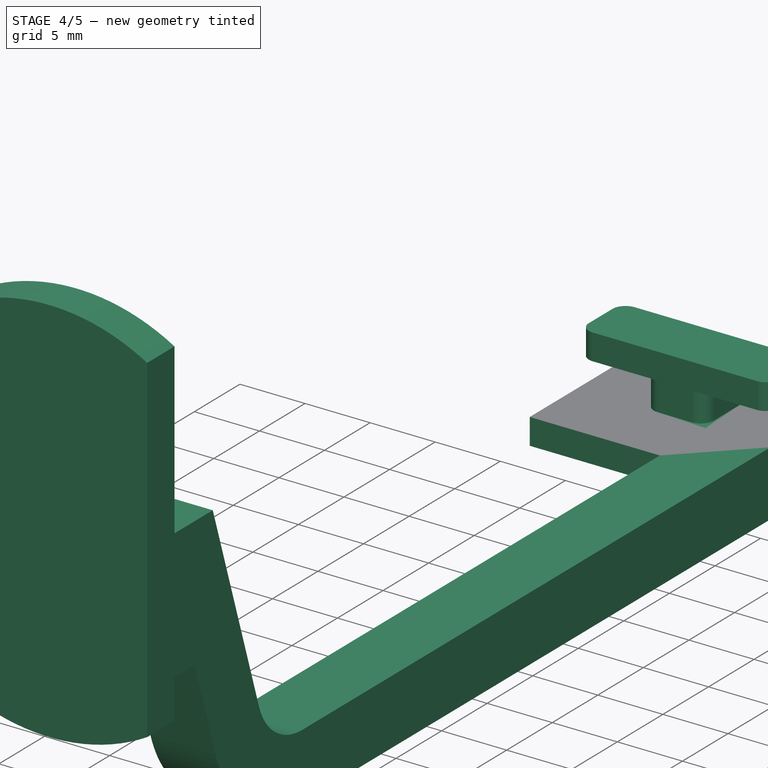
[diagram: stage 4 of 5 — iso view after this stage's code; geometry added in this stage tinted green]
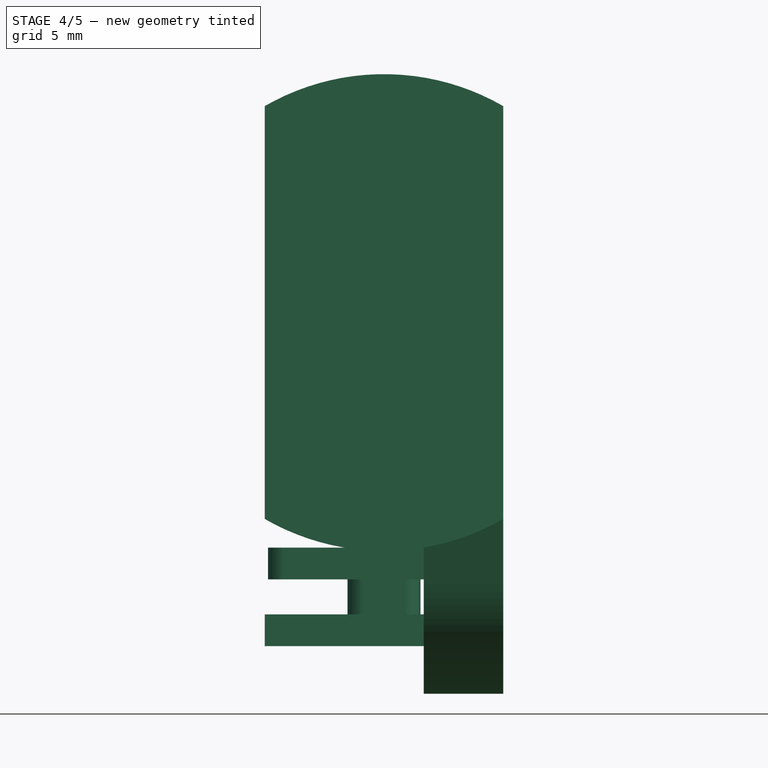
[diagram: stage 4 of 5 — front view after this stage's code; geometry added in this stage tinted green]
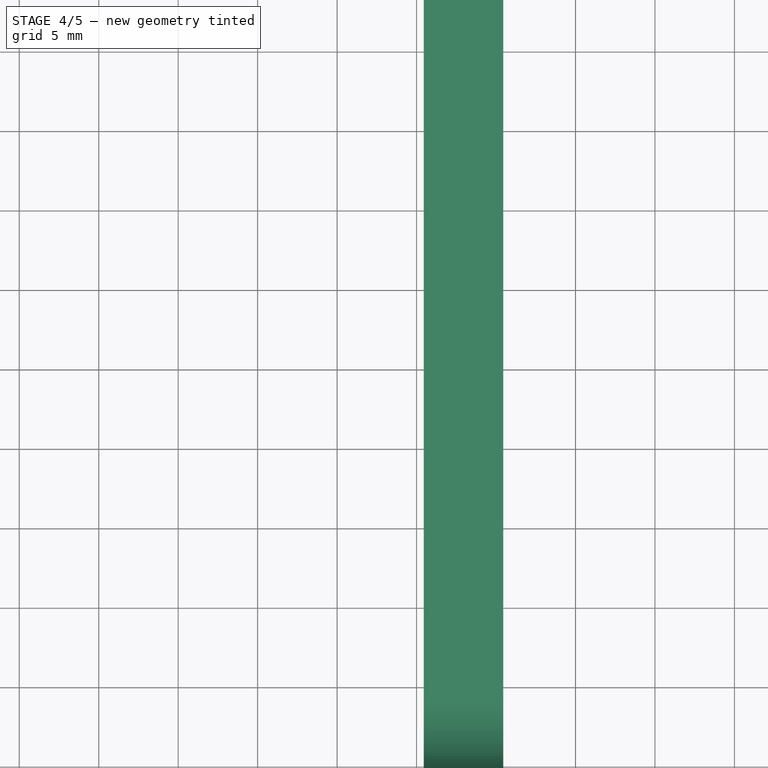
[diagram: stage 4 of 5 — top view after this stage's code; geometry added in this stage tinted green]
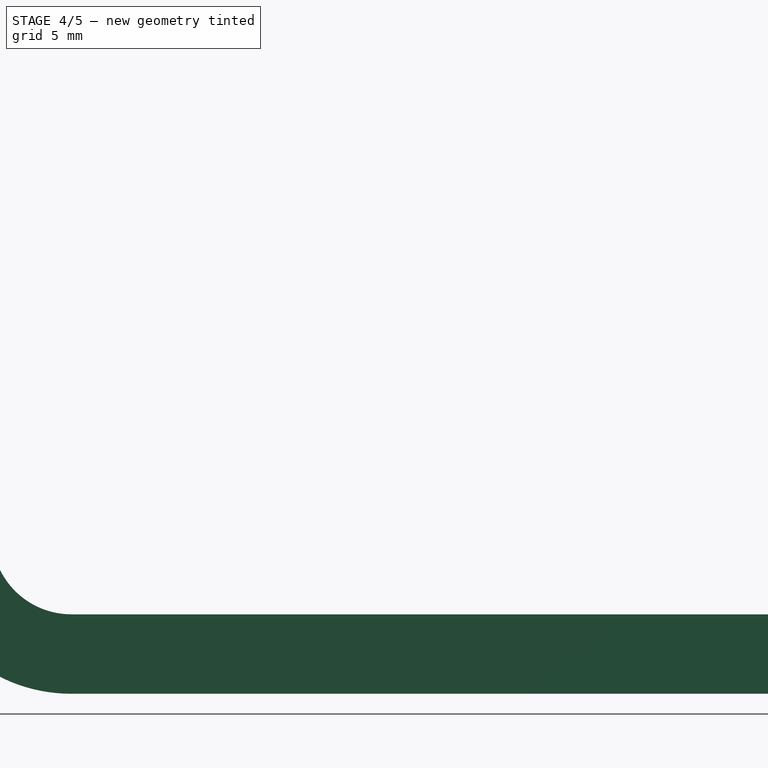
[diagram: stage 4 of 5 — right view after this stage's code; geometry added in this stage tinted green]
FEATURE [PartDesign::Body] Body002  label="Back"
  Group = -> [Sketch009,Pad007,Sketch010,Pad008,Sketch011,Pad009,Sketch014,Pocket,ShapeBinder,Sketch015,Pocket001,Sketch016,Pocket002,Sketch017,Pocket003,Sketch018,Pocket004,Sketch019,Pocket005,Sketch034,Pocket009,Sketch035,Pocket010,Sketch036,Sketch037,AdditiveLoft,Sketch038,Sketch039,AdditiveLoft001,ShapeBinder001,ShapeBinder002,ShapeBinder005]
  Origin = -> Origin002
  Tip = -> AdditiveLoft001
FEATURE [PartDesign::ShapeBinder] ShapeBinder003  label="ArmBase"
  Support = -> [AdditiveLoft001]
  TraceSupport = false
FEATURE [Sketcher::SketchObject] Sketch020
  ExternalGeometry = -> [ShapeBinder003]
  FullyConstrained = true
  MapMode = 5
  Placement = pos=(50.45,0,0) rot=(0.57735,-0.57735,-0.57735;2.0944rad)
  Support = -> [ShapeBinder003]
  sketch-geometry (14):
    g0: LineSegment StartX=-25.45 StartY=-14 StartZ=0 EndX=-20.45 EndY=-14 EndZ=0
    g1: LineSegment StartX=-20.45 StartY=-14 StartZ=0 EndX=30.9206 EndY=-14 EndZ=0
    g2: LineSegment StartX=-20.45 StartY=-19 StartZ=0 EndX=30.9206 EndY=-19 EndZ=0
    g3: LineSegment StartX=40.4285 StartY=-12.0984 StartZ=0 EndX=42.7417 EndY=-5 EndZ=0
    g4: LineSegment StartX=-25.45 StartY=-14 StartZ=0 EndX=-25.45 EndY=-16 EndZ=0
    g5: LineSegment StartX=-25.45 StartY=-16 StartZ=0 EndX=-20.45 EndY=-19 EndZ=0
    g6: LineSegment StartX=42.7417 StartY=5 StartZ=0 EndX=40.7417 EndY=5 EndZ=0
    g7: LineSegment StartX=42.7417 StartY=5 StartZ=0 EndX=42.7417 EndY=0 EndZ=0
    g8: LineSegment StartX=42.7417 StartY=0 StartZ=0 EndX=42.7417 EndY=-5 EndZ=0
    g9: LineSegment StartX=40.7417 StartY=5 StartZ=0 EndX=35.6745 EndY=-10.5492 EndZ=0
    g10: ArcOfCircle CenterX=30.9206 CenterY=-9 CenterZ=0 NormalX=0 NormalY=0 NormalZ=1 AngleXU=0 Radius=5 StartAngle=4.71239 EndAngle=5.96816
    g11: GeomPoint X=34.55 Y=-14 Z=0
    g12: ArcOfCircle CenterX=30.9206 CenterY=-9 CenterZ=0 NormalX=0 NormalY=0 NormalZ=1 AngleXU=0 Radius=10 StartAngle=4.71239 EndAngle=5.96816
    g13: GeomPoint X=38.1794 Y=-19 Z=0
  constraints (37):
    c: DistanceY(g2,g0) = 5
    c: Horizontal(g0)
    c: Vertical(g0,g2)
    c: Horizontal(g1)
    c: DistanceX(g1,g11) = 55
    c: Coincident(g1,g0)
    c: Horizontal(g2)
    c: Coincident(g4,g0)
    c: Vertical(g4)
    c: Coincident(g5,g4)
    c: Coincident(g5,g2)
    c: Horizontal(g6)
    c: DistanceX(g6,g6) = 2
    c: Coincident(g7,g6)
    c: PointOnObject(g7,g-1)
    c: Vertical(g7)
    c: DistanceY(g7,g7) = 5
    c: Coincident(g8,g7)
    c: Vertical(g8)
    c: Equal(g8,g7)
    c: Coincident(g3,g8)
    c: Coincident(g9,g6)
    c: Parallel(g9,g3)
    c: Distance(g3,g9) = 5
    c: PointOnObject(g11,g1)
    c: PointOnObject(g11,g9)
    c: Tangent(g1,g10) = -1.5708
    c: Tangent(g9,g10) = 1.5708
    c: PointOnObject(g13,g2)
    c: PointOnObject(g13,g3)
    c: Tangent(g2,g12) = -1.5708
    c: Tangent(g3,g12) = -1.5708
    c: DistanceY(g1,g10) = 5
    c: DistanceY(g2,g12) = 10
    c: Coincident(g0,g-4)
    c: DistanceX(g0,g0) = 5
    c: DistanceY(g4,g4) = 2
FEATURE [PartDesign::Pad] Pad011  label="PadArm"
  Direction = (1,1,1)
  Length = 5
  Length2 = 100
  Profile = -> Sketch020
  Type = 0
FEATURE [Sketcher::SketchObject] Sketch021
  ExternalGeometry = -> [Pad011]
  FullyConstrained = true
  MapMode = 5
  Placement = pos=(45.45,0,0) rot=(0.57735,-0.57735,-0.57735;2.0944rad)
  Support = -> [Pad011]
  sketch-geometry (9):
    g0: LineSegment StartX=-25.45 StartY=-16 StartZ=0 EndX=-25.45 EndY=-14 EndZ=0
    g1: LineSegment StartX=-25.45 StartY=-14 StartZ=0 EndX=-20.45 EndY=-14 EndZ=0
    g2: LineSegment StartX=-20.45 StartY=-14 StartZ=0 EndX=-15.45 EndY=-14 EndZ=0
    g3: LineSegment StartX=-15.45 StartY=-14 StartZ=0 EndX=-15.45 EndY=-16 EndZ=0
    g4: LineSegment StartX=-15.45 StartY=-16 StartZ=0 EndX=-25.45 EndY=-16 EndZ=0
    g5: LineSegment StartX=40.7417 StartY=5 StartZ=0 EndX=42.7417 EndY=5 EndZ=0
    g6: LineSegment StartX=42.7417 StartY=5 StartZ=0 EndX=42.7417 EndY=-5 EndZ=0
    g7: LineSegment StartX=42.7417 StartY=-5 StartZ=0 EndX=40.7417 EndY=-5 EndZ=0
    g8: LineSegment StartX=40.7417 StartY=-5 StartZ=0 EndX=40.7417 EndY=5 EndZ=0
  constraints (21):
    c: Coincident(g-3,g0)
    c: Coincident(g0,g-4)
    c: Coincident(g0,g1)
    c: Coincident(g1,g-4)
    c: Coincident(g1,g2)
    c: Horizontal(g2)
    c: Coincident(g2,g3)
    c: Vertical(g3)
    c: Coincident(g3,g4)
    c: Coincident(g4,g0)
    c: Horizontal(g4)
    c: Equal(g2,g1)
    c: Coincident(g-7,g5)
    c: Coincident(g5,g-7)
    c: Coincident(g5,g6)
    c: Coincident(g6,g-6)
    c: Coincident(g6,g7)
    c: Horizontal(g7)
    c: Coincident(g7,g8)
    c: Coincident(g8,g5)
    c: Vertical(g8)
FEATURE [PartDesign::Pad] Pad012  label="PadSupports"
  BaseFeature = -> Pad011
  Direction = (1,1,1)
  Length = 10
  Length2 = 100
  Profile = -> Sketch021
  Type = 0
FEATURE [Sketcher::SketchObject] Sketch022
  ExternalGeometry = -> [Pad012]
  FullyConstrained = true
  MapMode = 5
  Placement = pos=(0,0,-14) rot=(0,0,1;0rad)
  Support = -> [Pad012]
  sketch-geometry (14):
    g0: LineSegment StartX=41.65 StartY=25.25 StartZ=0 EndX=44.25 EndY=25.25 EndZ=0
    g1: LineSegment StartX=45.25 StartY=24.25 StartZ=0 EndX=45.25 EndY=21.65 EndZ=0
    g2: LineSegment StartX=44.25 StartY=20.65 StartZ=0 EndX=41.65 EndY=20.65 EndZ=0
    g3: LineSegment StartX=40.65 StartY=21.65 StartZ=0 EndX=40.65 EndY=24.25 EndZ=0
    g4: ArcOfCircle CenterX=41.65 CenterY=24.25 CenterZ=0 NormalX=0 NormalY=0 NormalZ=1 AngleXU=0 Radius=1 StartAngle=1.5708 EndAngle=3.14159
    g5: GeomPoint X=40.65 Y=25.25 Z=0
    g6: ArcOfCircle CenterX=44.25 CenterY=24.25 CenterZ=0 NormalX=0 NormalY=0 NormalZ=1 AngleXU=0 Radius=1 StartAngle=-1.8e-15 EndAngle=1.5708
    g7: GeomPoint X=45.25 Y=25.25 Z=0
    g8: ArcOfCircle CenterX=41.65 CenterY=21.65 CenterZ=0 NormalX=0 NormalY=0 NormalZ=1 AngleXU=0 Radius=1 StartAngle=3.14159 EndAngle=4.71239
    g9: GeomPoint X=40.65 Y=20.65 Z=0
    g10: ArcOfCircle CenterX=44.25 CenterY=21.65 CenterZ=0 NormalX=0 NormalY=0 NormalZ=1 AngleXU=0 Radius=1 StartAngle=4.71239 EndAngle=6.28319
    g11: GeomPoint X=45.25 Y=20.65 Z=0
    g12: LineSegment StartX=45.25 StartY=25.25 StartZ=0 EndX=45.45 EndY=25.45 EndZ=0
    g13: LineSegment StartX=45.25 StartY=20.65 StartZ=0 EndX=45.45 EndY=20.45 EndZ=0
  constraints (32):
    c: Horizontal(g0)
    c: Horizontal(g2)
    c: Vertical(g1)
    c: Vertical(g3)
    c: PointOnObject(g5,g3)
    c: PointOnObject(g5,g0)
    c: Tangent(g3,g4) = 1.5708
    c: Tangent(g0,g4) = 1.5708
    c: PointOnObject(g7,g0)
    c: PointOnObject(g7,g1)
    c: Tangent(g0,g6) = 1.5708
    c: Tangent(g1,g6) = 1.5708
    c: PointOnObject(g9,g3)
    c: PointOnObject(g9,g2)
    c: Tangent(g3,g8) = 1.5708
    c: Tangent(g2,g8) = 1.5708
    c: PointOnObject(g11,g1)
    c: PointOnObject(g11,g2)
    c: Tangent(g1,g10) = 1.5708
    c: Tangent(g2,g10) = 1.5708
    c: Equal(g8,g10)
    c: Equal(g8,g6)
    c: Equal(g8,g4)
    c: Radius(g8) = 1
    c: Equal(g0,g3)
    c: Coincident(g12,g7)
    c: Coincident(g12,g-3)
    c: Coincident(g13,g11)
    c: Coincident(g13,g-4)
    c: Equal(g12,g13)
    c: Angle(g13,g12) = 1.5708
    c: DistanceX(g11,g13) = 0.2
FEATURE [PartDesign::Pad] Pad013  label="PadThroughHole"
  BaseFeature = -> Pad012
  Direction = (1,1,1)
  Length = 2.2
  Length2 = 100
  Profile = -> Sketch022
  Type = 0
FEATURE [Sketcher::SketchObject] Sketch023
  ExternalGeometry = -> [Pad013]
  FullyConstrained = true
  MapMode = 5
  Placement = pos=(0,0,-11.8) rot=(0,0,1;0rad)
  Support = -> [Pad013]
  sketch-geometry (12):
    g0: LineSegment StartX=36.65 StartY=25.25 StartZ=0 EndX=49.25 EndY=25.25 EndZ=0
    g1: LineSegment StartX=50.25 StartY=24.25 StartZ=0 EndX=50.25 EndY=21.65 EndZ=0
    g2: LineSegment StartX=49.25 StartY=20.65 StartZ=0 EndX=36.65 EndY=20.65 EndZ=0
    g3: LineSegment StartX=35.65 StartY=21.65 StartZ=0 EndX=35.65 EndY=24.25 EndZ=0
    g4: ArcOfCircle CenterX=36.65 CenterY=24.25 CenterZ=0 NormalX=0 NormalY=0 NormalZ=1 AngleXU=0 Radius=1 StartAngle=1.5708 EndAngle=3.14159
    g5: GeomPoint X=35.65 Y=25.25 Z=0
    g6: ArcOfCircle CenterX=36.65 CenterY=21.65 CenterZ=0 NormalX=0 NormalY=0 NormalZ=1 AngleXU=0 Radius=1 StartAngle=3.14159 EndAngle=4.71239
    g7: GeomPoint X=35.65 Y=20.65 Z=0
    g8: ArcOfCircle CenterX=49.25 CenterY=21.65 CenterZ=0 NormalX=0 NormalY=0 NormalZ=1 AngleXU=0 Radius=1 StartAngle=4.71239 EndAngle=6.28319
    g9: GeomPoint X=50.25 Y=20.65 Z=0
    g10: ArcOfCircle CenterX=49.25 CenterY=24.25 CenterZ=0 NormalX=0 NormalY=0 NormalZ=1 AngleXU=0 Radius=1 StartAngle=0 EndAngle=1.5708
    g11: GeomPoint X=50.25 Y=25.25 Z=0
  constraints (26):
    c: PointOnObject(g5,g0)
    c: PointOnObject(g5,g3)
    c: Tangent(g0,g4) = 1.5708
    c: Tangent(g3,g4) = 1.5708
    c: PointOnObject(g7,g3)
    c: PointOnObject(g7,g2)
    c: Tangent(g3,g6) = 1.5708
    c: PointOnObject(g9,g2)
    c: PointOnObject(g9,g1)
    c: Tangent(g1,g8) = 1.5708
    c: PointOnObject(g11,g1)
    c: PointOnObject(g11,g0)
    c: Tangent(g1,g10) = 1.5708
    c: Tangent(g0,g10) = 1.5708
    c: Equal(g10,g8)
    c: Equal(g10,g6)
    c: Equal(g10,g4)
    c: Radius(g10) = 1
    c: Tangent(g-5,g0)
    c: Tangent(g2,g-4)
    c: Tangent(g2,g6) = 1.5708
    c: Tangent(g2,g8) = 1.5708
    c: Vertical(g3)
    c: Vertical(g1)
    c: Distance(g3,g-6) = 0.2
    c: Distance(g1,g-3) = 0.2
FEATURE [PartDesign::Pad] Pad014  label="PadAnchor"
  BaseFeature = -> Pad013
  Direction = (1,1,1)
  Length = 2
  Length2 = 100
  Profile = -> Sketch023
  Type = 0
FEATURE [Sketcher::SketchObject] Sketch024
  ExternalGeometry = -> [Pad014]
  FullyConstrained = true
  MapMode = 5
  Placement = pos=(0,-42.7417,0) rot=(1,0,0;1.5708rad)
  Support = -> [Pad014]
  sketch-geometry (4):
    g0: LineSegment StartX=35.45 StartY=5 StartZ=0 EndX=50.45 EndY=5 EndZ=0
    g1: LineSegment StartX=50.45 StartY=5 StartZ=0 EndX=50.45 EndY=-5 EndZ=0
    g2: LineSegment StartX=50.45 StartY=-5 StartZ=0 EndX=35.45 EndY=-5 EndZ=0
    g3: LineSegment StartX=35.45 StartY=-5 StartZ=0 EndX=35.45 EndY=5 EndZ=0
  constraints (10):
    c: Coincident(g0,g1)
    c: Coincident(g1,g2)
    c: Coincident(g2,g3)
    c: Coincident(g3,g0)
    c: Horizontal(g0)
    c: Horizontal(g2)
    c: Vertical(g1)
    c: Vertical(g3)
    c: Coincident(g0,g-3)
    c: Coincident(g-4,g1)
FEATURE [PartDesign::Pad] Pad015  label="PadRotorOffset"
  BaseFeature = -> Pad014
  Direction = (1,1,1)
  Length = 2.2
  Length2 = 100
  Profile = -> Sketch024
  Type = 0
FEATURE [Sketcher::SketchObject] Sketch025
  ExternalGeometry = -> [Pad015]
  FullyConstrained = true
  MapMode = 5
  Placement = pos=(0,-44.9417,0) rot=(1,0,0;1.5708rad)
  Support = -> [Pad015]
  sketch-geometry (9):
    g0: LineSegment StartX=35.45 StartY=17.9808 StartZ=0 EndX=50.45 EndY=17.9808 EndZ=0
    g1: LineSegment StartX=50.45 StartY=17.9808 StartZ=0 EndX=50.45 EndY=-8 EndZ=0
    g2: LineSegment StartX=50.45 StartY=-8 StartZ=0 EndX=35.45 EndY=-8 EndZ=0
    g3: LineSegment StartX=35.45 StartY=-8 StartZ=0 EndX=35.45 EndY=17.9808 EndZ=0
    g4: LineSegment StartX=35.45 StartY=-8 StartZ=0 EndX=50.45 EndY=17.9808 EndZ=0
    g5: LineSegment StartX=35.45 StartY=17.9808 StartZ=0 EndX=50.45 EndY=-8 EndZ=0
    g6: ArcOfCircle CenterX=42.95 CenterY=4.99038 CenterZ=0 NormalX=0 NormalY=0 NormalZ=1 AngleXU=0 Radius=15 StartAngle=4.18879 EndAngle=5.23599
    g7: ArcOfCircle CenterX=42.95 CenterY=4.99038 CenterZ=0 NormalX=0 NormalY=0 NormalZ=1 AngleXU=0 Radius=15 StartAngle=1.0472 EndAngle=2.0944
    g8: GeomPoint X=42.95 Y=4.99038 Z=0
  constraints (20):
    c: Coincident(g0,g1)
    c: Coincident(g0,g4)
    c: Coincident(g0,g7)
    c: Coincident(g0,g3)
    c: Coincident(g0,g5)
    c: Coincident(g0,g7)
    c: Coincident(g6,g1)
    c: Coincident(g6,g2)
    c: Coincident(g6,g5)
    c: Coincident(g2,g3)
    c: Coincident(g2,g4)
    c: Coincident(g2,g6)
    c: PointOnObject(g8,g5)
    c: PointOnObject(g8,g4)
    c: Coincident(g8,g6)
    c: Coincident(g8,g7)
    c: Distance(g5) = 30
    c: Tangent(g3,g-5)
    c: Tangent(g1,g-6)
    c: DistanceY(g3,g-5) = 3
FEATURE [PartDesign::Pad] Pad016  label="PadRotor"
  BaseFeature = -> Pad015
  Direction = (1,1,1)
  Length = 3
  Length2 = 100
  Profile = -> Sketch025
  Type = 0
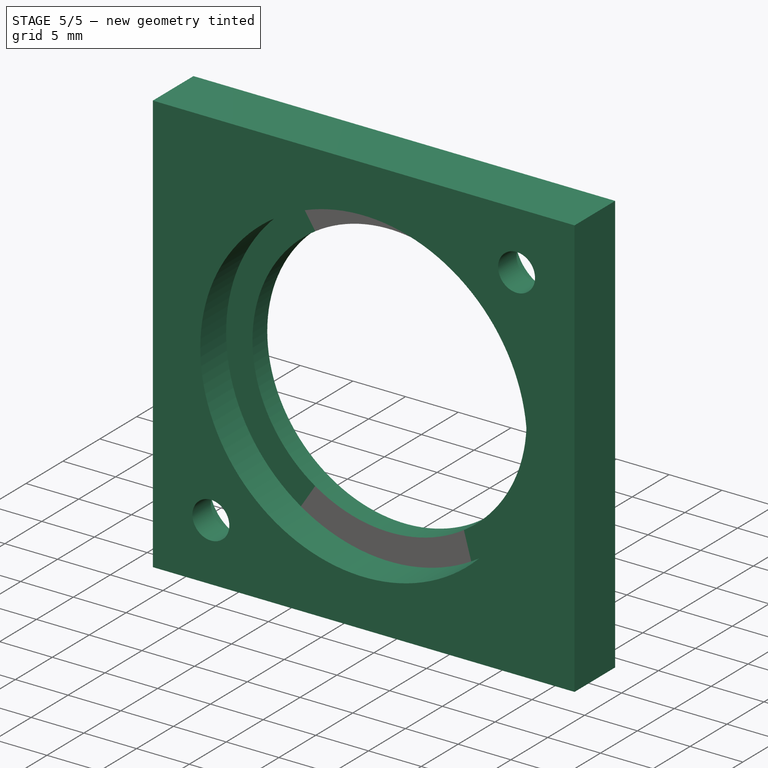
[diagram: stage 5 of 5 — iso view after this stage's code; geometry added in this stage tinted green]
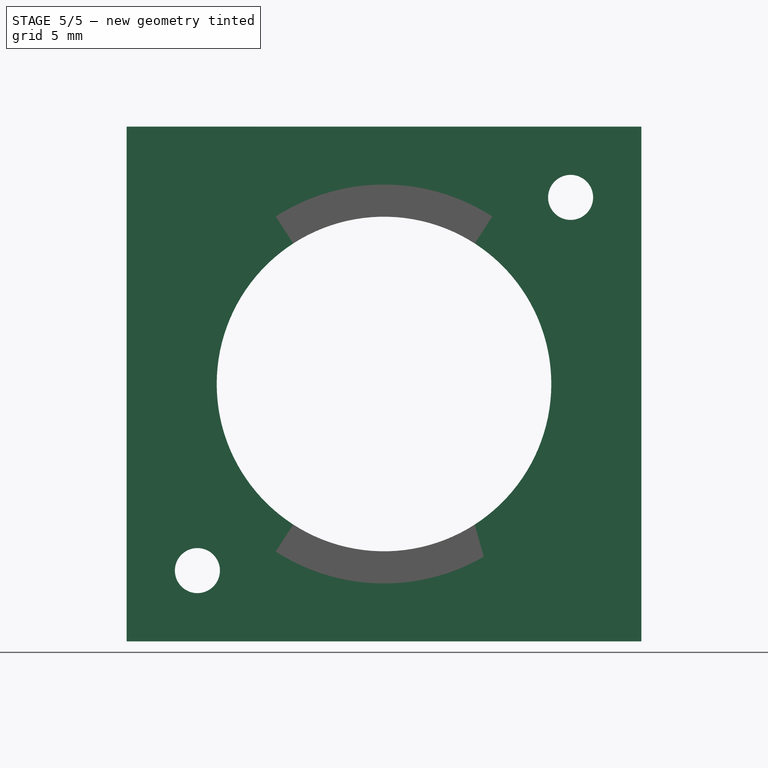
[diagram: stage 5 of 5 — front view after this stage's code; geometry added in this stage tinted green]
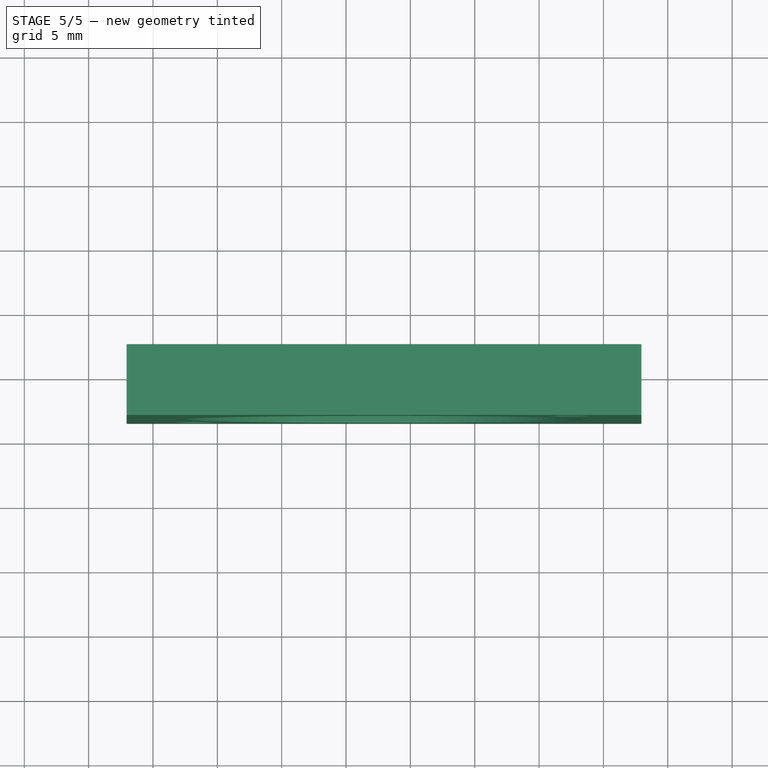
[diagram: stage 5 of 5 — top view after this stage's code; geometry added in this stage tinted green]
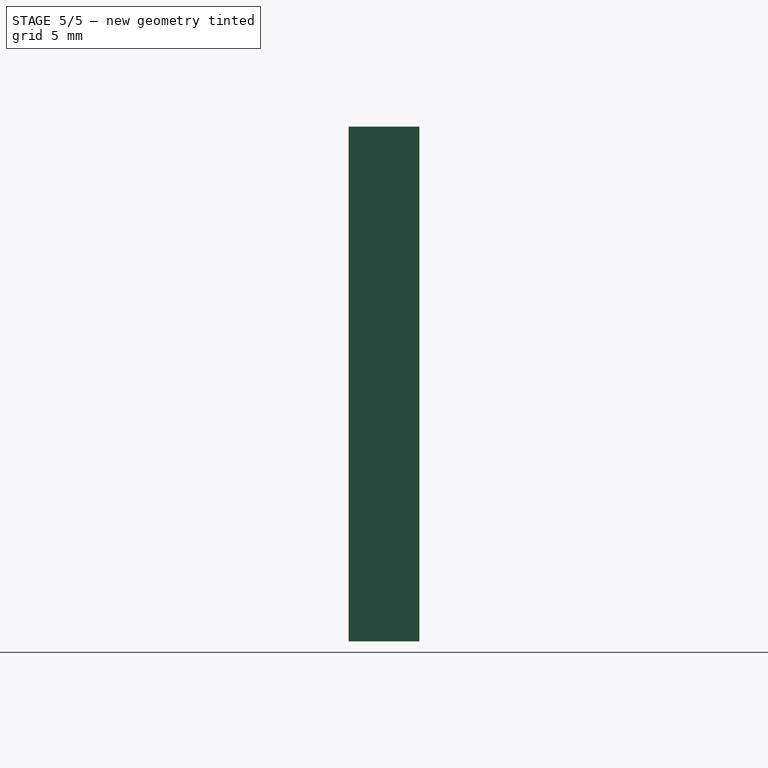
[diagram: stage 5 of 5 — right view after this stage's code; geometry added in this stage tinted green]
FEATURE [Sketcher::SketchObject] Sketch026
  ExternalGeometry = -> [Pad016]
  FullyConstrained = true
  MapMode = 5
  Placement = pos=(0,-40.7417,0) rot=(0,0.707107,0.707107;3.14159rad)
  Support = -> [Pad016]
  sketch-geometry (6):
    g0: LineSegment StartX=-50.45 StartY=17.9808 StartZ=0 EndX=-35.45 EndY=5 EndZ=0
    g1: LineSegment StartX=-50.45 StartY=5 StartZ=0 EndX=-35.45 EndY=17.9808 EndZ=0
    g2: LineSegment StartX=-35.45 StartY=-5 StartZ=0 EndX=-45.45 EndY=5 EndZ=0
    g3: LineSegment StartX=-45.45 StartY=-5 StartZ=0 EndX=-35.45 EndY=5 EndZ=0
    g4: Circle CenterX=-42.95 CenterY=11.4904 CenterZ=0 NormalX=0 NormalY=0 NormalZ=1 AngleXU=0 Radius=1.5
    g5: Circle CenterX=-40.45 CenterY=-2.4e-15 CenterZ=0 NormalX=0 NormalY=0 NormalZ=1 AngleXU=0 Radius=1.5
  constraints (14):
    c: Coincident(g3,g0)
    c: PointOnObject(g5,g3)
    c: PointOnObject(g5,g2)
    c: Equal(g5,g4)
    c: Radius(g5) = 1.5
    c: PointOnObject(g4,g1)
    c: PointOnObject(g4,g0)
    c: Coincident(g-5,g0)
    c: Coincident(g2,g-5)
    c: Coincident(g1,g-3)
    c: Coincident(g1,g-4)
    c: Coincident(g0,g-3)
    c: Coincident(g3,g-6)
    c: Coincident(g2,g-6)
FEATURE [PartDesign::Hole] Hole
  BaseFeature = -> Pad016
  Depth = 25
  DepthType = 0
  Diameter = 3.5
  DrillForDepth = false
  DrillPoint = 1
  DrillPointAngle = 118
  HoleCutCountersinkAngle = 90
  HoleCutCustomValues = false
  HoleCutDepth = 0
  HoleCutDiameter = 6.1
  HoleCutType = 0
  ModelActualThread = false
  Profile = -> Sketch026
  Tapered = false
  TaperedAngle = 90
  ThreadAngle = 0
  ThreadClass = 0
  ThreadCutOffInner = 0
  ThreadCutOffOuter = 0
  ThreadDirection = 0
  ThreadFit = 0
  ThreadPitch = 0
  ThreadSize = 0
  ThreadType = 0
  Threaded = false
FEATURE [Sketcher::SketchObject] Sketch027
  ExternalGeometry = -> [Hole]
  FullyConstrained = true
  MapMode = 5
  Placement = pos=(0,-40.7417,0) rot=(0,0.707107,0.707107;3.14159rad)
  Support = -> [Hole]
  sketch-geometry (2):
    g0: Circle CenterX=-42.95 CenterY=11.4904 CenterZ=0 NormalX=0 NormalY=0 NormalZ=1 AngleXU=0 Radius=4
    g1: Circle CenterX=-40.45 CenterY=0 CenterZ=0 NormalX=0 NormalY=0 NormalZ=1 AngleXU=0 Radius=4
  constraints (4):
    c: Coincident(g0,g-3)
    c: Coincident(g1,g-4)
    c: Equal(g1,g0)
    c: Radius(g1) = 4
FEATURE [PartDesign::Pocket] Pocket006  label="HoleRecess"
  BaseFeature = -> Hole
  Length = 5.5
  Length2 = 100
  Profile = -> Sketch027
  Type = 0
FEATURE [PartDesign::Body] Body003  label="Arm"
  Group = -> [ShapeBinder003,Sketch020,Pad011,Sketch021,Pad012,Sketch022,Pad013,Sketch023,Pad014,Sketch024,Pad015,Sketch025,Pad016,Sketch026,Hole,Sketch027,Pocket006]
  Origin = -> Origin003
  Tip = -> Pocket006
FEATURE [PartDesign::ShapeBinder] ShapeBinder004  label="ArmRotor"
  Support = -> [Pocket006]
  TraceSupport = false
FEATURE [Sketcher::SketchObject] Sketch028
  ExternalGeometry = -> [ShapeBinder004]
  FullyConstrained = true
  MapMode = 5
  Placement = pos=(0,-44.9417,1.18e-14) rot=(0,0.707107,0.707107;3.14159rad)
  Support = -> [ShapeBinder004]
  sketch-geometry (13):
    g0: LineSegment StartX=-50.45 StartY=-8 StartZ=0 EndX=-42.95 EndY=4.99038 EndZ=0
    g1: LineSegment StartX=-42.95 StartY=4.99038 StartZ=0 EndX=-50.45 EndY=17.9808 EndZ=0
    g2: LineSegment StartX=-42.95 StartY=4.99038 StartZ=0 EndX=-35.45 EndY=17.9808 EndZ=0
    g3: LineSegment StartX=-42.95 StartY=4.99038 StartZ=0 EndX=-35.45 EndY=-8 EndZ=0
    g4: Circle CenterX=-42.95 CenterY=4.99038 CenterZ=0 NormalX=0 NormalY=0 NormalZ=1 AngleXU=0 Radius=13
    g5: LineSegment StartX=-62.95 StartY=-15.0096 StartZ=0 EndX=-22.95 EndY=-15.0096 EndZ=0
    g6: LineSegment StartX=-22.95 StartY=-15.0096 StartZ=0 EndX=-22.95 EndY=24.9904 EndZ=0
    g7: LineSegment StartX=-22.95 StartY=24.9904 StartZ=0 EndX=-62.95 EndY=24.9904 EndZ=0
    g8: LineSegment StartX=-62.95 StartY=24.9904 StartZ=0 EndX=-62.95 EndY=-15.0096 EndZ=0
    g9: LineSegment StartX=-62.95 StartY=-15.0096 StartZ=0 EndX=-42.95 EndY=4.99038 EndZ=0
    g10: LineSegment StartX=-42.95 StartY=4.99038 StartZ=0 EndX=-22.95 EndY=24.9904 EndZ=0
    g11: LineSegment StartX=-42.95 StartY=4.99038 StartZ=0 EndX=-62.95 EndY=24.9904 EndZ=0
    g12: LineSegment StartX=-42.95 StartY=4.99038 StartZ=0 EndX=-22.95 EndY=-15.0096 EndZ=0
  constraints (31):
    c: Coincident(g0,g-6)
    c: Coincident(g1,g0)
    c: Coincident(g1,g-3)
    c: Coincident(g2,g0)
    c: Coincident(g2,g-4)
    c: Coincident(g3,g0)
    c: Coincident(g3,g-5)
    c: Equal(g0,g3)
    c: Equal(g0,g1)
    c: Coincident(g4,g0)
    c: Radius(g4) = 13
    c: Coincident(g5,g6)
    c: Coincident(g7,g8)
    c: Horizontal(g5)
    c: Horizontal(g7)
    c: Vertical(g6)
    c: Vertical(g8)
    c: Coincident(g9,g4)
    c: Coincident(g10,g4)
    c: Coincident(g11,g4)
    c: Coincident(g11,g7)
    c: Coincident(g12,g4)
    c: Coincident(g12,g5)
    c: Equal(g12,g9)
    c: Equal(g11,g9)
    c: DistanceY(g9,g8) = 40
    c: Equal(g8,g5)
    c: Coincident(g7,g10)
    c: Coincident(g6,g7)
    c: Coincident(g5,g9)
    c: Coincident(g8,g5)
FEATURE [PartDesign::Pad] Pad017
  Direction = (1,1,1)
  Length = 2
  Length2 = 100
  Profile = -> Sketch028
  Type = 0
FEATURE [Sketcher::SketchObject] Sketch029
  ExternalGeometry = -> [Pad017,ShapeBinder004]
  FullyConstrained = true
  MapMode = 5
  Placement = pos=(0,-44.9417,8e-15) rot=(1,0,0;1.5708rad)
  Support = -> [Pad017]
  sketch-geometry (5):
    g0: LineSegment StartX=22.95 StartY=24.9904 StartZ=0 EndX=62.95 EndY=24.9904 EndZ=0
    g1: LineSegment StartX=62.95 StartY=24.9904 StartZ=0 EndX=62.95 EndY=-15.0096 EndZ=0
    g2: LineSegment StartX=62.95 StartY=-15.0096 StartZ=0 EndX=22.95 EndY=-15.0096 EndZ=0
    g3: LineSegment StartX=22.95 StartY=-15.0096 StartZ=0 EndX=22.95 EndY=24.9904 EndZ=0
    g4: Circle CenterX=42.95 CenterY=4.99038 CenterZ=0 NormalX=0 NormalY=0 NormalZ=1 AngleXU=0 Radius=15.5
  constraints (10):
    c: Coincident(g-4,g0)
    c: Coincident(g0,g-6)
    c: Coincident(g0,g1)
    c: Coincident(g1,g-6)
    c: Coincident(g1,g2)
    c: Coincident(g2,g-5)
    c: Coincident(g2,g3)
    c: Coincident(g3,g0)
    c: Coincident(g4,g-11)
    c: Radius(g4) = 15.5
FEATURE [PartDesign::Pad] Pad018
  BaseFeature = -> Pad017
  Direction = (1,1,1)
  Length = 3.5
  Length2 = 100
  Profile = -> Sketch029
  Type = 0
FEATURE [Sketcher::SketchObject] Sketch030
  ExternalGeometry = -> [Pad018]
  FullyConstrained = true
  MapMode = 5
  Placement = pos=(0,-42.9417,7.6e-15) rot=(0,0.707107,0.707107;3.14159rad)
  Support = -> [Pad018]
  sketch-geometry (5):
    g0: Circle CenterX=-57.45 CenterY=19.4904 CenterZ=0 NormalX=0 NormalY=0 NormalZ=1 AngleXU=0 Radius=4
    g1: Circle CenterX=-28.45 CenterY=-9.50962 CenterZ=0 NormalX=0 NormalY=0 NormalZ=1 AngleXU=0 Radius=4
    g2: LineSegment StartX=-62.95 StartY=24.9904 StartZ=0 EndX=-57.45 EndY=19.4904 EndZ=0
    g3: LineSegment StartX=-28.45 StartY=-9.50962 StartZ=0 EndX=-22.95 EndY=-15.0096 EndZ=0
    g4: LineSegment StartX=-62.95 StartY=24.9904 StartZ=0 EndX=-22.95 EndY=-15.0096 EndZ=0
  constraints (12):
    c: Equal(g1,g0)
    c: Radius(g1) = 4
    c: Coincident(g2,g0)
    c: Coincident(g3,g1)
    c: Coincident(g3,g-6)
    c: Equal(g3,g2)
    c: Coincident(g4,g2)
    c: Coincident(g4,g3)
    c: PointOnObject(g1,g4)
    c: PointOnObject(g0,g4)
    c: DistanceX(g1,g3) = 5.5
    c: Coincident(g2,g-4)
FEATURE [PartDesign::Pocket] Pocket007
  BaseFeature = -> Pad018
  Length = 3
  Length2 = 100
  Profile = -> Sketch030
  Type = 0
FEATURE [Sketcher::SketchObject] Sketch031
  ExternalGeometry = -> [Pocket007]
  FullyConstrained = true
  MapMode = 5
  Placement = pos=(0,-42.9417,7.6e-15) rot=(0,0.707107,0.707107;3.14159rad)
  Support = -> [Pocket007]
  sketch-geometry (2):
    g0: Circle CenterX=-28.45 CenterY=-9.50962 CenterZ=0 NormalX=0 NormalY=0 NormalZ=1 AngleXU=0 Radius=2
    g1: Circle CenterX=-57.45 CenterY=19.4904 CenterZ=0 NormalX=0 NormalY=0 NormalZ=1 AngleXU=0 Radius=2
  constraints (4):
    c: Coincident(g0,g-3)
    c: Coincident(g1,g-4)
    c: Equal(g1,g0)
    c: Radius(g1) = 2
FEATURE [PartDesign::Hole] Hole001
  BaseFeature = -> Pocket007
  Depth = 25
  DepthType = 0
  Diameter = 3.5
  DrillForDepth = false
  DrillPoint = 1
  DrillPointAngle = 118
  HoleCutCountersinkAngle = 90
  HoleCutCustomValues = false
  HoleCutDepth = 0
  HoleCutDiameter = 6.1
  HoleCutType = 0
  ModelActualThread = false
  Profile = -> Sketch031
  Tapered = false
  TaperedAngle = 90
  ThreadAngle = 0
  ThreadClass = 0
  ThreadCutOffInner = 0
  ThreadCutOffOuter = 0
  ThreadDirection = 0
  ThreadFit = 0
  ThreadPitch = 0
  ThreadSize = 0
  ThreadType = 0
  Threaded = false
FEATURE [PartDesign::Body] Body004  label="RotatableMount"
  Group = -> [ShapeBinder004,Sketch028,Pad017,Sketch029,Pad018,Sketch030,Pocket007,Sketch031,Hole001]
  Origin = -> Origin004
  Tip = -> Hole001
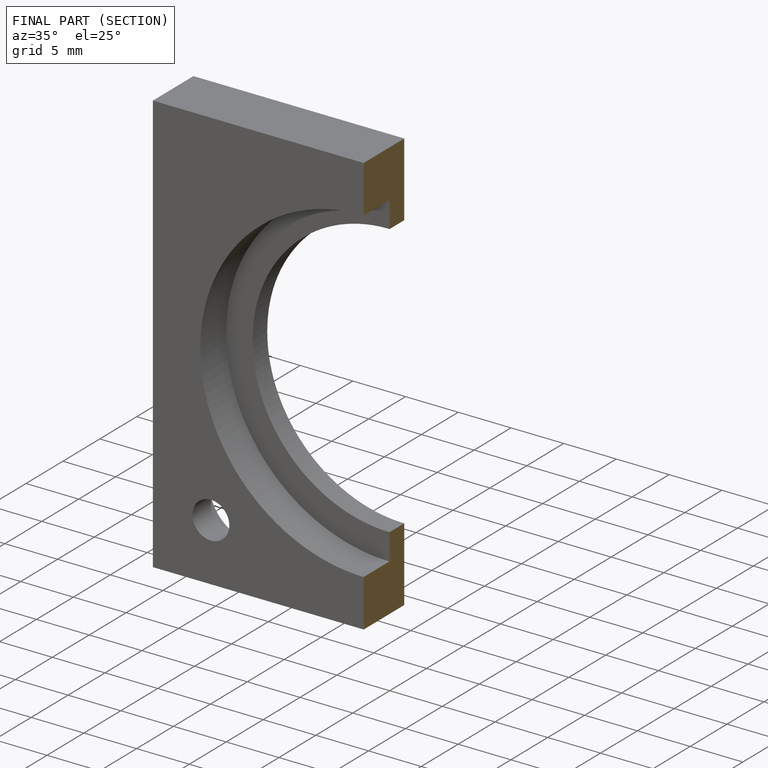
[diagram: finished part — half-section view (interior)]
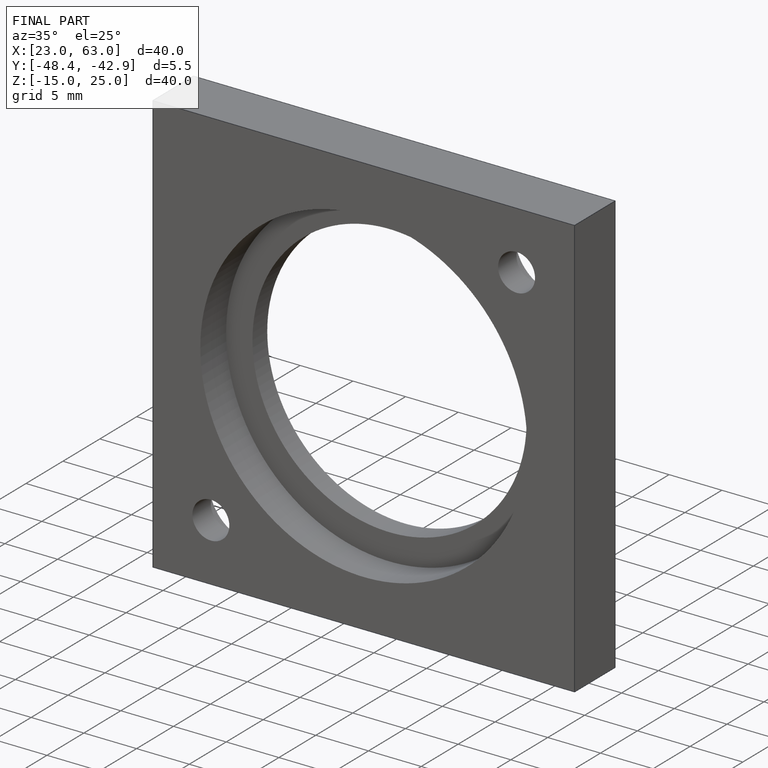
[diagram: finished part — iso view with bounding-box wireframe]
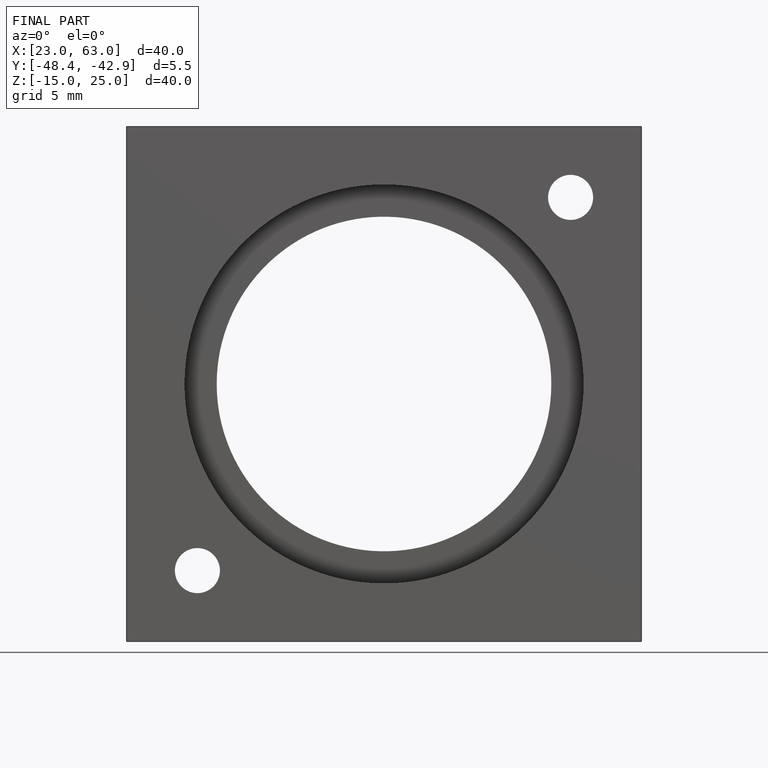
[diagram: finished part — front view with bounding-box wireframe]
